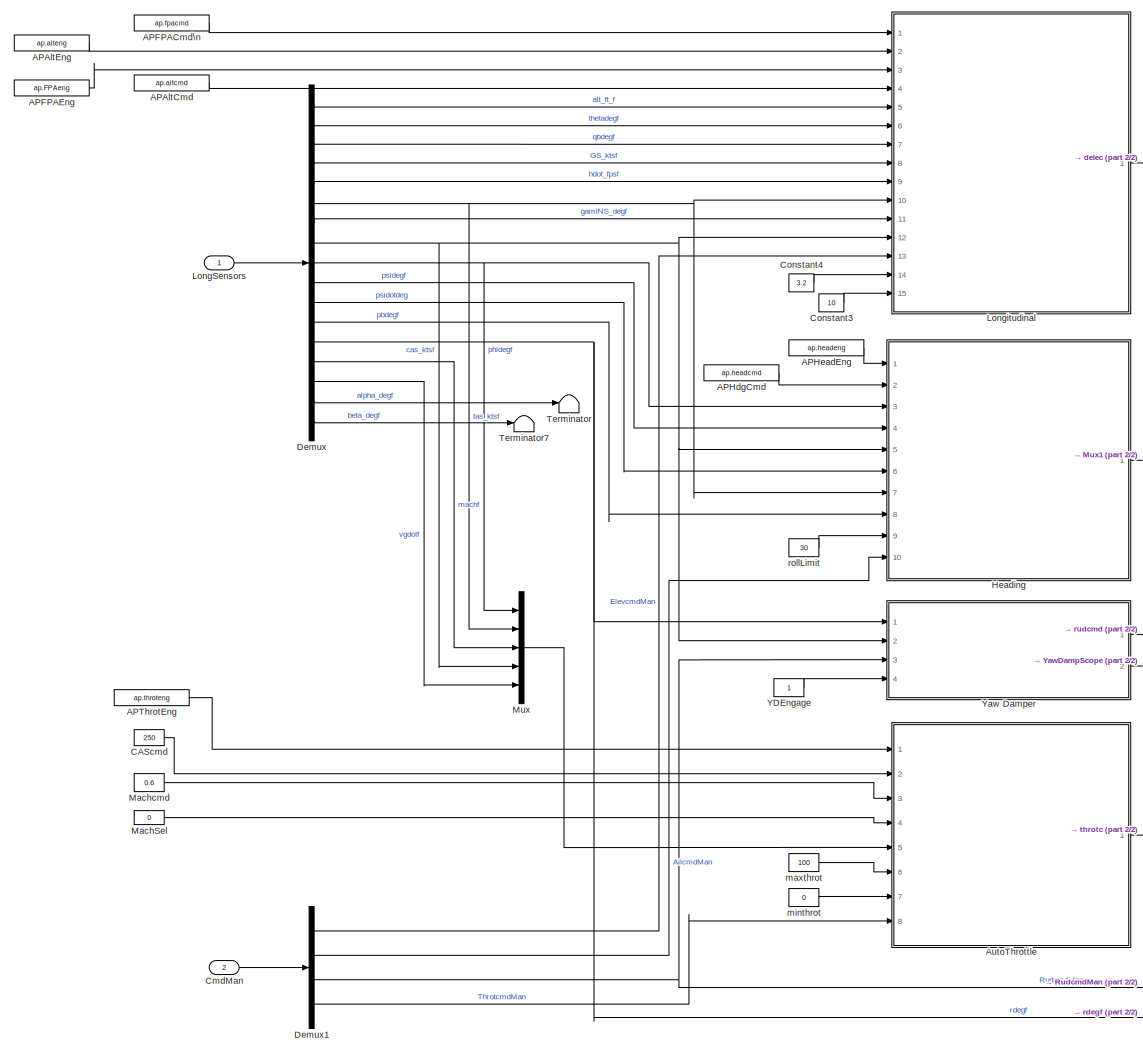
[diagram: root canvas - part 1/2, most of the canvas]
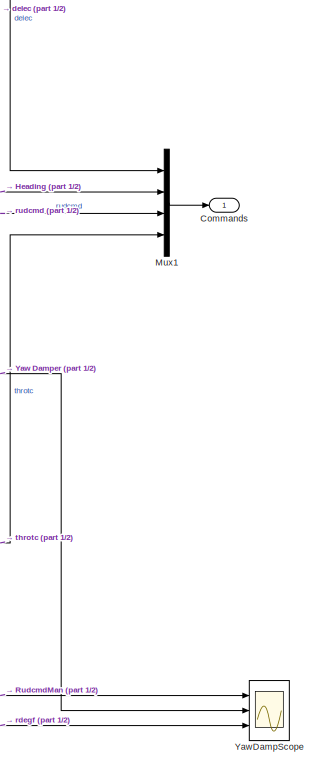
[diagram: root canvas - part 2/2, middle right region]
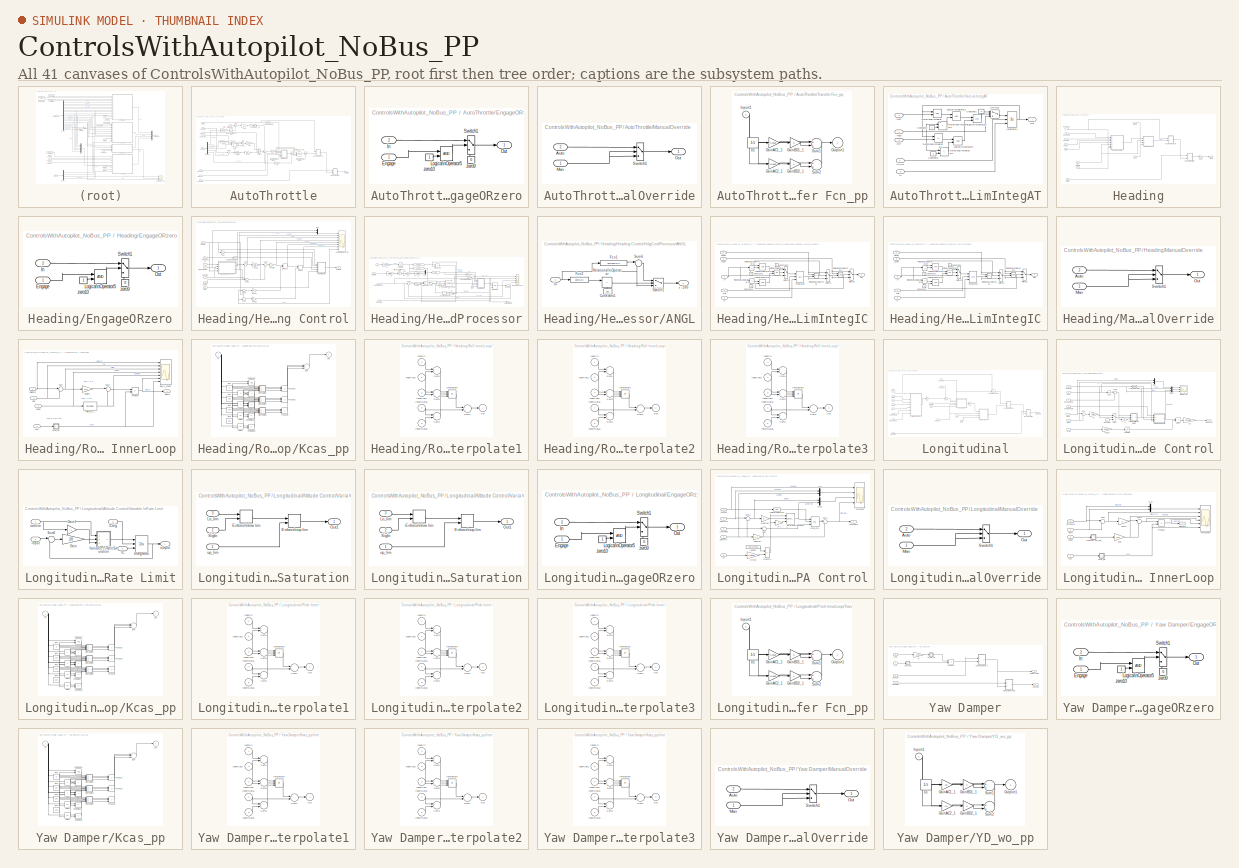
[diagram: thumbnail index - all 41 canvases of the model, root first then tree order]
MODEL ControlsWithAutopilot_NoBus_PP
KIND model
BLOCK [Constant] APAltCmd
  Value = ap.altcmd
BLOCK [Constant] APAltEng
  OutDataTypeMode = boolean
  OutDataTypeStr = boolean
  Value = ap.alteng
BLOCK [Constant] APFPACmd\n
  Value = ap.fpacmd
BLOCK [Constant] APFPAEng
  OutDataTypeMode = boolean
  OutDataTypeStr = boolean
  Value = ap.FPAeng
BLOCK [Constant] APHdgCmd
  Value = ap.headcmd
BLOCK [Constant] APHeadEng
  OutDataTypeMode = boolean
  OutDataTypeStr = boolean
  Value = ap.headeng
BLOCK [Constant] APThrotEng
  OutDataTypeMode = boolean
  OutDataTypeStr = boolean
  Value = ap.throteng
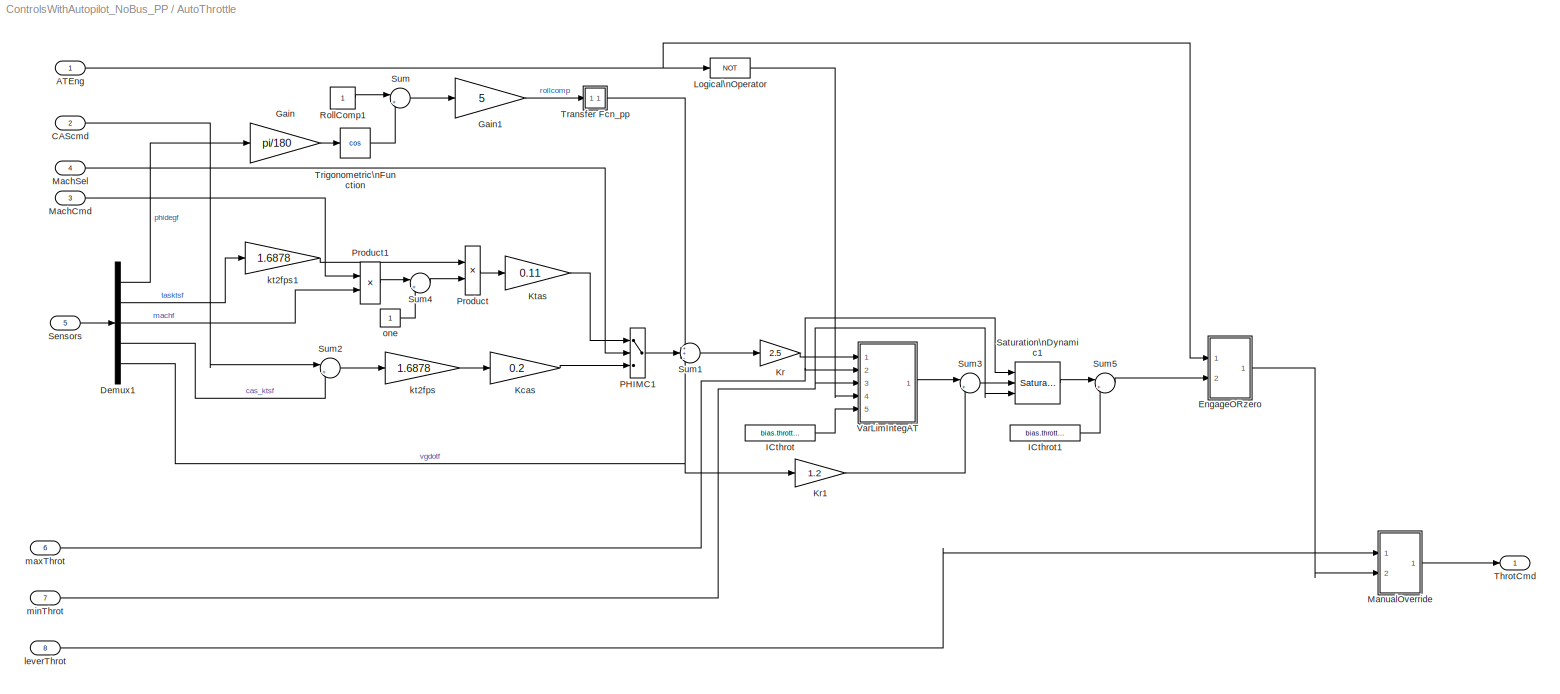
BLOCK [SubSystem] AutoThrottle
  FunctionWithSeparateData = off
  MaskHideContents = off
  MinAlgLoopOccurrences = off
  Opaque = off
  Ports = [8, 1]
  PropExecContextOutsideSubsystem = off
  RTWSystemCode = Auto
  RequestExecContextInheritance = off
BLOCK [Inport] AutoThrottle/ATEng
  IconDisplay = Port number
BLOCK [Inport] AutoThrottle/CAScmd
  IconDisplay = Port number
  Port = 2
BLOCK [Demux] AutoThrottle/Demux1
  DisplayOption = bar
  Outputs = 5
  Ports = [1, 5]
BLOCK [SubSystem] AutoThrottle/EngageORzero
  FunctionWithSeparateData = off
  MaskHideContents = off
  MinAlgLoopOccurrences = off
  Opaque = off
  Ports = [2, 1]
  PropExecContextOutsideSubsystem = off
  RTWSystemCode = Auto
  RequestExecContextInheritance = off
BLOCK [Inport] AutoThrottle/EngageORzero/Engage
  IconDisplay = Port number
BLOCK [Inport] AutoThrottle/EngageORzero/In
  IconDisplay = Port number
  Port = 2
BLOCK [Logic] AutoThrottle/EngageORzero/Logical\nOperator5
  AllPortsSameDT = off
  OutDataTypeMode = boolean
  OutDataTypeStr = boolean
  Ports = [2, 1]
BLOCK [Outport] AutoThrottle/EngageORzero/Out
  IconDisplay = Port number
BLOCK [Switch] AutoThrottle/EngageORzero/Switch1
  InputSameDT = off
  SaturateOnIntegerOverflow = off
  Threshold = 0.5
BLOCK [Constant] AutoThrottle/EngageORzero/zero10
BLOCK [Constant] AutoThrottle/EngageORzero/zero9
  Value = 0
BLOCK [Gain] AutoThrottle/Gain
  Gain = pi/180
  OutDataTypeMode = Inherit via internal rule
  OutDataTypeStr = Inherit: Inherit via internal rule
  ParamDataTypeStr = Inherit: Inherit via internal rule
  ParameterDataTypeMode = Inherit via internal rule
  SaturateOnIntegerOverflow = off
BLOCK [Gain] AutoThrottle/Gain1
  Gain = 5
  OutDataTypeMode = Inherit via internal rule
  OutDataTypeStr = Inherit: Inherit via internal rule
  ParamDataTypeStr = Inherit: Inherit via internal rule
  ParameterDataTypeMode = Inherit via internal rule
  SaturateOnIntegerOverflow = off
BLOCK [Constant] AutoThrottle/ICthrot
  SampleTime = -1
  Value = bias.throttle
BLOCK [Constant] AutoThrottle/ICthrot1
  SampleTime = -1
  Value = bias.throttle
BLOCK [Gain] AutoThrottle/Kcas
  Gain = 0.2
  OutDataTypeMode = Inherit via internal rule
  OutDataTypeStr = Inherit: Inherit via internal rule
  ParamDataTypeStr = Inherit: Inherit via internal rule
  ParameterDataTypeMode = Inherit via internal rule
  SaturateOnIntegerOverflow = off
BLOCK [Gain] AutoThrottle/Kr
  Gain = 2.5
  OutDataTypeMode = Inherit via internal rule
  OutDataTypeStr = Inherit: Inherit via internal rule
  ParamDataTypeStr = Inherit: Inherit via internal rule
  ParameterDataTypeMode = Inherit via internal rule
  SaturateOnIntegerOverflow = off
BLOCK [Gain] AutoThrottle/Kr1
  Gain = 1.2
  OutDataTypeMode = Inherit via internal rule
  OutDataTypeStr = Inherit: Inherit via internal rule
  ParamDataTypeStr = Inherit: Inherit via internal rule
  ParameterDataTypeMode = Inherit via internal rule
  SaturateOnIntegerOverflow = off
BLOCK [Gain] AutoThrottle/Ktas
  Gain = 0.11
  OutDataTypeMode = Inherit via internal rule
  OutDataTypeStr = Inherit: Inherit via internal rule
  ParamDataTypeStr = Inherit: Inherit via internal rule
  ParameterDataTypeMode = Inherit via internal rule
  SaturateOnIntegerOverflow = off
BLOCK [Logic] AutoThrottle/Logical\nOperator
  AllPortsSameDT = off
  Operator = NOT
  OutDataTypeMode = boolean
  OutDataTypeStr = boolean
  Ports = [1, 1]
BLOCK [Inport] AutoThrottle/MachCmd
  IconDisplay = Port number
  Port = 3
BLOCK [Inport] AutoThrottle/MachSel
  IconDisplay = Port number
  Port = 4
BLOCK [SubSystem] AutoThrottle/ManualOverride
  FunctionWithSeparateData = off
  MaskHideContents = off
  MinAlgLoopOccurrences = off
  Opaque = off
  Ports = [2, 1]
  PropExecContextOutsideSubsystem = off
  RTWSystemCode = Auto
  RequestExecContextInheritance = off
BLOCK [Inport] AutoThrottle/ManualOverride/Auto
  IconDisplay = Port number
  Port = 2
BLOCK [Inport] AutoThrottle/ManualOverride/Man
  IconDisplay = Port number
BLOCK [Outport] AutoThrottle/ManualOverride/Out
  IconDisplay = Port number
BLOCK [Switch] AutoThrottle/ManualOverride/Switch1
  Criteria = u2 ~= 0
  InputSameDT = off
  SaturateOnIntegerOverflow = off
  Threshold = 0.5
BLOCK [Switch] AutoThrottle/PHIMC1
  InputSameDT = off
  SampleTime = 0.02
  Threshold = 0.5
BLOCK [Product] AutoThrottle/Product
  InputSameDT = off
  OutDataTypeMode = Inherit via internal rule
  OutDataTypeStr = Inherit: Inherit via internal rule
  Ports = [2, 1]
  SaturateOnIntegerOverflow = off
BLOCK [Product] AutoThrottle/Product1
  InputSameDT = off
  Inputs = */
  OutDataTypeMode = Inherit via internal rule
  OutDataTypeStr = Inherit: Inherit via internal rule
  Ports = [2, 1]
  SaturateOnIntegerOverflow = off
BLOCK [Constant] AutoThrottle/RollComp1
  SampleTime = -1
BLOCK [Reference] AutoThrottle/Saturation\nDynamic1  REF=simulink/Discontinuities/Saturation\nDynamic
  DoSatur = off
  FunctionWithSeparateData = off
  LockScale = off
  OutDataType = sfix(16)
  OutDataTypeStr = Inherit: Same as second input
  OutMax = []
  OutMin = []
  OutScaling = 2^-10
  OutputDataTypeScalingMode = Same as second input
  Ports = [3, 1]
  RTWMemSecDataConstants = Inherit from model
  RTWMemSecDataInternal = Inherit from model
  RTWMemSecDataParameters = Inherit from model
  RTWMemSecFuncExecute = Inherit from model
  RTWMemSecFuncInitTerm = Inherit from model
  RndMeth = Floor
  ShowPortLabels = FromPortIcon
  SourceBlock = simulink/Discontinuities/Saturation\nDynamic
  SourceType = Saturation Dynamic
  SystemSampleTime = -1
BLOCK [Inport] AutoThrottle/Sensors
  IconDisplay = Port number
  Port = 5
BLOCK [Sum] AutoThrottle/Sum
  IconShape = round
  InputSameDT = off
  Inputs = |+-
  OutDataTypeMode = Inherit via internal rule
  OutDataTypeStr = Inherit: Inherit via internal rule
  Ports = [2, 1]
  SaturateOnIntegerOverflow = off
BLOCK [Sum] AutoThrottle/Sum1
  IconShape = round
  InputSameDT = off
  Inputs = ++-
  OutDataTypeMode = Inherit via internal rule
  OutDataTypeStr = Inherit: Inherit via internal rule
  Ports = [3, 1]
  SaturateOnIntegerOverflow = off
BLOCK [Sum] AutoThrottle/Sum2
  IconShape = round
  InputSameDT = off
  Inputs = |+-
  OutDataTypeMode = Inherit via internal rule
  OutDataTypeStr = Inherit: Inherit via internal rule
  Ports = [2, 1]
  SaturateOnIntegerOverflow = off
BLOCK [Sum] AutoThrottle/Sum3
  IconShape = round
  InputSameDT = off
  Inputs = |+-
  OutDataTypeMode = Inherit via internal rule
  OutDataTypeStr = Inherit: Inherit via internal rule
  Ports = [2, 1]
  SaturateOnIntegerOverflow = off
BLOCK [Sum] AutoThrottle/Sum4
  IconShape = round
  InputSameDT = off
  Inputs = |+-
  OutDataTypeMode = Inherit via internal rule
  OutDataTypeStr = Inherit: Inherit via internal rule
  Ports = [2, 1]
  SaturateOnIntegerOverflow = off
BLOCK [Sum] AutoThrottle/Sum5
  IconShape = round
  InputSameDT = off
  Inputs = |+-
  OutDataTypeMode = Inherit via internal rule
  OutDataTypeStr = Inherit: Inherit via internal rule
  Ports = [2, 1]
  SaturateOnIntegerOverflow = off
BLOCK [Outport] AutoThrottle/ThrotCmd
  IconDisplay = Port number
BLOCK [SubSystem] AutoThrottle/Transfer Fcn_pp
  FunctionWithSeparateData = off
  MaskHideContents = off
  MinAlgLoopOccurrences = off
  Opaque = off
  Ports = [1, 1]
  PropExecContextOutsideSubsystem = off
  RTWSystemCode = Auto
  RequestExecContextInheritance = off
  TreatAsAtomicUnit = on
BLOCK [UnitDelay] AutoThrottle/Transfer Fcn_pp/D1
  SampleTime = -1
BLOCK [Gain] AutoThrottle/Transfer Fcn_pp/GainAC1_1
  Gain = -0.0625
BLOCK [Gain] AutoThrottle/Transfer Fcn_pp/GainAC2_1
  Gain = -0.0625
BLOCK [Gain] AutoThrottle/Transfer Fcn_pp/GainBD1_1
BLOCK [Gain] AutoThrottle/Transfer Fcn_pp/GainBD2_1
BLOCK [Inport] AutoThrottle/Transfer Fcn_pp/Inport1
  IconDisplay = Port number
BLOCK [Outport] AutoThrottle/Transfer Fcn_pp/Outport1
  IconDisplay = Port number
BLOCK [Sum] AutoThrottle/Transfer Fcn_pp/Sum1
  Ports = [2, 1]
BLOCK [Sum] AutoThrottle/Transfer Fcn_pp/Sum2
  Ports = [2, 1]
BLOCK [Trigonometry] AutoThrottle/Trigonometric\nFunction
  Operator = cos
  Ports = [1, 1]
BLOCK [SubSystem] AutoThrottle/VarLimIntegAT
  FunctionWithSeparateData = off
  MaskHideContents = off
  MinAlgLoopOccurrences = off
  Opaque = off
  Ports = [5, 1]
  PropExecContextOutsideSubsystem = off
  RTWSystemCode = Auto
  RequestExecContextInheritance = off
BLOCK [Constant] AutoThrottle/VarLimIntegAT/Constant1
  SampleTime = -1
  Value = 0
BLOCK [Constant] AutoThrottle/VarLimIntegAT/Constant2
  SampleTime = -1
  Value = 0
BLOCK [Constant] AutoThrottle/VarLimIntegAT/Constant3
  SampleTime = -1
  Value = 0
BLOCK [Inport] AutoThrottle/VarLimIntegAT/IC
  IconDisplay = Port number
  Port = 5
BLOCK [Inport] AutoThrottle/VarLimIntegAT/ICtrig
  IconDisplay = Port number
  Port = 4
BLOCK [Inport] AutoThrottle/VarLimIntegAT/Input
  IconDisplay = Port number
BLOCK [Integrator] AutoThrottle/VarLimIntegAT/Integrator1
  ExternalReset = level
  InitialConditionSource = external
  Ports = [3, 1]
BLOCK [Logic] AutoThrottle/VarLimIntegAT/Logical\nOperator1
  Operator = OR
  Ports = [2, 1]
BLOCK [Logic] AutoThrottle/VarLimIntegAT/Logical\nOperator2
  Ports = [2, 1]
BLOCK [Logic] AutoThrottle/VarLimIntegAT/Logical\nOperator3
  Ports = [2, 1]
BLOCK [Inport] AutoThrottle/VarLimIntegAT/Max
  IconDisplay = Port number
  Port = 2
BLOCK [Inport] AutoThrottle/VarLimIntegAT/Min
  IconDisplay = Port number
  Port = 3
BLOCK [Outport] AutoThrottle/VarLimIntegAT/Out
  IconDisplay = Port number
BLOCK [RelationalOperator] AutoThrottle/VarLimIntegAT/Relational\nOperator1
  Operator = <=
BLOCK [RelationalOperator] AutoThrottle/VarLimIntegAT/Relational\nOperator2
BLOCK [RelationalOperator] AutoThrottle/VarLimIntegAT/Relational\nOperator3
  Operator = >
BLOCK [RelationalOperator] AutoThrottle/VarLimIntegAT/Relational\nOperator4
  Operator = <
BLOCK [Switch] AutoThrottle/VarLimIntegAT/Switch1
  Threshold = 0.1
BLOCK [Gain] AutoThrottle/kt2fps
  Gain = 1.6878
  OutDataTypeMode = Inherit via internal rule
  OutDataTypeStr = Inherit: Inherit via internal rule
  ParamDataTypeStr = Inherit: Inherit via internal rule
  ParameterDataTypeMode = Inherit via internal rule
  SaturateOnIntegerOverflow = off
BLOCK [Gain] AutoThrottle/kt2fps1
  Gain = 1.6878
  OutDataTypeMode = Inherit via internal rule
  OutDataTypeStr = Inherit: Inherit via internal rule
  ParamDataTypeStr = Inherit: Inherit via internal rule
  ParameterDataTypeMode = Inherit via internal rule
  SaturateOnIntegerOverflow = off
BLOCK [Inport] AutoThrottle/leverThrot
  IconDisplay = Port number
  Port = 8
BLOCK [Inport] AutoThrottle/maxThrot
  IconDisplay = Port number
  Port = 6
BLOCK [Inport] AutoThrottle/minThrot
  IconDisplay = Port number
  Port = 7
BLOCK [Constant] AutoThrottle/one
  SampleTime = -1
BLOCK [Constant] CAScmd
  Value = 250
BLOCK [Inport] CmdMan
  BusObject = SensorsBus
  IconDisplay = Port number
  Port = 2
  PortDimensions = 9
BLOCK [Outport] Commands
  IconDisplay = Port number
BLOCK [Constant] Constant3
  Value = 10
BLOCK [Constant] Constant4
  Value = 3.2
BLOCK [Demux] Demux
  DisplayOption = bar
  Outputs = 17
  Ports = [1, 17]
BLOCK [Demux] Demux1
  DisplayOption = bar
  Ports = [1, 4]
BLOCK [SubSystem] Heading
  FunctionWithSeparateData = off
  MaskHideContents = off
  MinAlgLoopOccurrences = off
  Opaque = off
  Ports = [10, 1]
  PropExecContextOutsideSubsystem = off
  RTWSystemCode = Auto
  RequestExecContextInheritance = off
BLOCK [Outport] Heading/AilCmd
  IconDisplay = Port number
BLOCK [Inport] Heading/AilStick
  IconDisplay = Port number
  Port = 10
BLOCK [Inport] Heading/CAS
  IconDisplay = Port number
  Port = 5
BLOCK [SubSystem] Heading/EngageORzero
  FunctionWithSeparateData = off
  MaskHideContents = off
  MinAlgLoopOccurrences = off
  Opaque = off
  Ports = [2, 1]
  PropExecContextOutsideSubsystem = off
  RTWSystemCode = Auto
  RequestExecContextInheritance = off
BLOCK [Inport] Heading/EngageORzero/Engage
  IconDisplay = Port number
BLOCK [Inport] Heading/EngageORzero/In
  IconDisplay = Port number
  Port = 2
BLOCK [Logic] Heading/EngageORzero/Logical\nOperator5
  AllPortsSameDT = off
  OutDataTypeMode = boolean
  OutDataTypeStr = boolean
  Ports = [2, 1]
BLOCK [Outport] Heading/EngageORzero/Out
  IconDisplay = Port number
BLOCK [Switch] Heading/EngageORzero/Switch1
  InputSameDT = off
  SaturateOnIntegerOverflow = off
  Threshold = 0.5
BLOCK [Constant] Heading/EngageORzero/zero10
BLOCK [Constant] Heading/EngageORzero/zero9
  Value = 0
BLOCK [Gain] Heading/Gain1
  Gain = -1
BLOCK [Inport] Heading/HeadCmd
  IconDisplay = Port number
  Port = 2
BLOCK [Inport] Heading/HeadEng
  IconDisplay = Port number
BLOCK [Inport] Heading/Heading
  IconDisplay = Port number
  Port = 4
BLOCK [SubSystem] Heading/Heading Control
  FunctionWithSeparateData = off
  MaskHideContents = off
  MinAlgLoopOccurrences = off
  Opaque = off
  Ports = [7, 1]
  PropExecContextOutsideSubsystem = off
  RTWSystemCode = Auto
  RequestExecContextInheritance = off
BLOCK [Inport] Heading/Heading Control/HdgCmdMCP
  IconDisplay = Port number
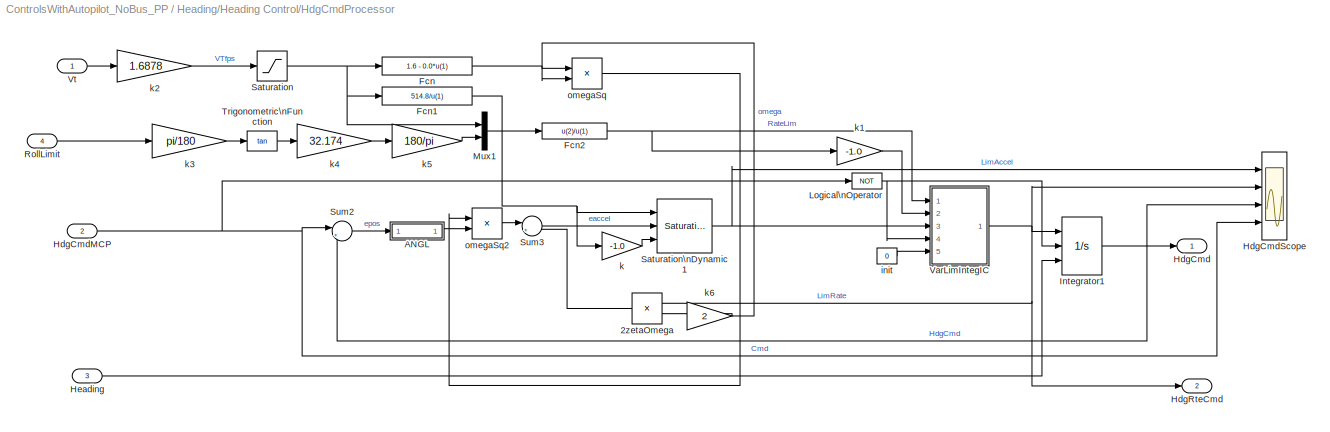
BLOCK [SubSystem] Heading/Heading Control/HdgCmdProcessor
  FunctionWithSeparateData = off
  MaskHideContents = off
  MinAlgLoopOccurrences = off
  Opaque = off
  Ports = [4, 2]
  PropExecContextOutsideSubsystem = off
  RTWSystemCode = Auto
  RequestExecContextInheritance = off
BLOCK [Product] Heading/Heading Control/HdgCmdProcessor/2zetaOmega
  InputSameDT = off
  OutDataTypeMode = Inherit via internal rule
  OutDataTypeStr = Inherit: Inherit via internal rule
  Ports = [2, 1]
  SaturateOnIntegerOverflow = off
BLOCK [SubSystem] Heading/Heading Control/HdgCmdProcessor/ANGL
  FunctionWithSeparateData = off
  MaskHideContents = off
  MinAlgLoopOccurrences = off
  Opaque = off
  Ports = [1, 1]
  PropExecContextOutsideSubsystem = off
  RTWSystemCode = Auto
  RequestExecContextInheritance = off
BLOCK [Outport] Heading/Heading Control/HdgCmdProcessor/ANGL/+ -180
  IconDisplay = Port number
BLOCK [Constant] Heading/Heading Control/HdgCmdProcessor/ANGL/Constant1
  Value = 180
BLOCK [Fcn] Heading/Heading Control/HdgCmdProcessor/ANGL/Fcn1
  Expr = 360*sgn(u(1))
BLOCK [Fcn] Heading/Heading Control/HdgCmdProcessor/ANGL/Fcn2
  Expr = abs(u(1))
BLOCK [RelationalOperator] Heading/Heading Control/HdgCmdProcessor/ANGL/Relational\nOperator
  InputSameDT = off
  Operator = >
BLOCK [Sum] Heading/Heading Control/HdgCmdProcessor/ANGL/Sum6
  IconShape = round
  InputSameDT = off
  Inputs = |-+
  OutDataTypeMode = Inherit via internal rule
  OutDataTypeStr = Inherit: Inherit via internal rule
  Ports = [2, 1]
BLOCK [Switch] Heading/Heading Control/HdgCmdProcessor/ANGL/Switch1
  InputSameDT = off
  Threshold = 0.1
BLOCK [Inport] Heading/Heading Control/HdgCmdProcessor/ANGL/in
  IconDisplay = Port number
BLOCK [Fcn] Heading/Heading Control/HdgCmdProcessor/Fcn
  Expr = 1.6 - 0.0*u(1)
BLOCK [Fcn] Heading/Heading Control/HdgCmdProcessor/Fcn1
  Expr = 514.8/u(1)
BLOCK [Fcn] Heading/Heading Control/HdgCmdProcessor/Fcn2
  Expr = u(2)/u(1)
BLOCK [Outport] Heading/Heading Control/HdgCmdProcessor/HdgCmd
  IconDisplay = Port number
BLOCK [Inport] Heading/Heading Control/HdgCmdProcessor/HdgCmdMCP
  IconDisplay = Port number
  Port = 2
BLOCK [Scope] Heading/Heading Control/HdgCmdProcessor/HdgCmdScope
  DataFormat = StructureWithTime
  Floating = off
  LimitDataPoints = off
  NumInputPorts = 4
  Ports = [4]
  SampleTime = 0
  SaveName = ScopeData6
  YMax = 2~4~40~40
  YMin = -2~-4~-40~-40
BLOCK [Outport] Heading/Heading Control/HdgCmdProcessor/HdgRteCmd
  IconDisplay = Port number
  Port = 2
BLOCK [Inport] Heading/Heading Control/HdgCmdProcessor/Heading
  IconDisplay = Port number
  Port = 3
BLOCK [Integrator] Heading/Heading Control/HdgCmdProcessor/Integrator1
  ExternalReset = level
  InitialConditionSource = external
  Ports = [3, 1]
BLOCK [Logic] Heading/Heading Control/HdgCmdProcessor/Logical\nOperator
  AllPortsSameDT = off
  Operator = NOT
  OutDataTypeMode = boolean
  OutDataTypeStr = boolean
  Ports = [1, 1]
BLOCK [Mux] Heading/Heading Control/HdgCmdProcessor/Mux1
  DisplayOption = bar
  Inputs = 2
  Ports = [2, 1]
BLOCK [Inport] Heading/Heading Control/HdgCmdProcessor/RollLimit
  IconDisplay = Port number
  Port = 4
BLOCK [Saturate] Heading/Heading Control/HdgCmdProcessor/Saturation
  LowerLimit = 0.0001
  UpperLimit = 1000
BLOCK [Reference] Heading/Heading Control/HdgCmdProcessor/Saturation\nDynamic1  REF=simulink/Discontinuities/Saturation\nDynamic
  DoSatur = off
  FunctionWithSeparateData = off
  LockScale = off
  OutDataType = fixdt(1, 16)
  OutDataTypeStr = Inherit: Same as second input
  OutMax = []
  OutMin = []
  OutScaling = 2^-10
  OutputDataTypeScalingMode = Same as second input
  Ports = [3, 1]
  RTWMemSecDataConstants = Inherit from model
  RTWMemSecDataInternal = Inherit from model
  RTWMemSecDataParameters = Inherit from model
  RTWMemSecFuncExecute = Inherit from model
  RTWMemSecFuncInitTerm = Inherit from model
  RndMeth = Floor
  ShowPortLabels = FromPortIcon
  SourceBlock = simulink/Discontinuities/Saturation\nDynamic
  SourceType = Saturation Dynamic
  SystemSampleTime = -1
BLOCK [Sum] Heading/Heading Control/HdgCmdProcessor/Sum2
  IconShape = round
  InputSameDT = off
  Inputs = |+-
  OutDataTypeMode = Inherit via internal rule
  OutDataTypeStr = Inherit: Inherit via internal rule
  Ports = [2, 1]
  SaturateOnIntegerOverflow = off
BLOCK [Sum] Heading/Heading Control/HdgCmdProcessor/Sum3
  IconShape = round
  InputSameDT = off
  Inputs = |+-
  OutDataTypeMode = Inherit via internal rule
  OutDataTypeStr = Inherit: Inherit via internal rule
  Ports = [2, 1]
  SaturateOnIntegerOverflow = off
BLOCK [Trigonometry] Heading/Heading Control/HdgCmdProcessor/Trigonometric\nFunction
  Operator = tan
  Ports = [1, 1]
BLOCK [SubSystem] Heading/Heading Control/HdgCmdProcessor/VarLimIntegIC
  FunctionWithSeparateData = off
  MaskHideContents = off
  MinAlgLoopOccurrences = off
  Opaque = off
  Ports = [5, 1]
  PropExecContextOutsideSubsystem = off
  RTWSystemCode = Auto
  RequestExecContextInheritance = off
BLOCK [Constant] Heading/Heading Control/HdgCmdProcessor/VarLimIntegIC/Constant1
  Value = 0
BLOCK [Constant] Heading/Heading Control/HdgCmdProcessor/VarLimIntegIC/Constant2
  Value = 0
BLOCK [Constant] Heading/Heading Control/HdgCmdProcessor/VarLimIntegIC/Constant3
  Value = 0
BLOCK [Inport] Heading/Heading Control/HdgCmdProcessor/VarLimIntegIC/IC
  IconDisplay = Port number
  Port = 5
BLOCK [Inport] Heading/Heading Control/HdgCmdProcessor/VarLimIntegIC/In
  IconDisplay = Port number
  Port = 3
BLOCK [Integrator] Heading/Heading Control/HdgCmdProcessor/VarLimIntegIC/Integrator
  ExternalReset = level
  InitialConditionSource = external
  Ports = [3, 1]
BLOCK [Inport] Heading/Heading Control/HdgCmdProcessor/VarLimIntegIC/LoLim
  IconDisplay = Port number
  Port = 2
BLOCK [Logic] Heading/Heading Control/HdgCmdProcessor/VarLimIntegIC/Logical\nOperator
  AllPortsSameDT = off
  Ports = [2, 1]
BLOCK [Logic] Heading/Heading Control/HdgCmdProcessor/VarLimIntegIC/Logical\nOperator1
  AllPortsSameDT = off
  Ports = [2, 1]
BLOCK [Logic] Heading/Heading Control/HdgCmdProcessor/VarLimIntegIC/Logical\nOperator2
  AllPortsSameDT = off
  Operator = OR
  Ports = [2, 1]
BLOCK [Outport] Heading/Heading Control/HdgCmdProcessor/VarLimIntegIC/Out
  IconDisplay = Port number
BLOCK [RelationalOperator] Heading/Heading Control/HdgCmdProcessor/VarLimIntegIC/Relational\nOperator
  InputSameDT = off
  Operator = <=
BLOCK [RelationalOperator] Heading/Heading Control/HdgCmdProcessor/VarLimIntegIC/Relational\nOperator1
  InputSameDT = off
BLOCK [RelationalOperator] Heading/Heading Control/HdgCmdProcessor/VarLimIntegIC/Relational\nOperator2
  InputSameDT = off
  Operator = >
BLOCK [RelationalOperator] Heading/Heading Control/HdgCmdProcessor/VarLimIntegIC/Relational\nOperator3
  InputSameDT = off
  Operator = <
BLOCK [Switch] Heading/Heading Control/HdgCmdProcessor/VarLimIntegIC/Switch1
  Threshold = 0.5
BLOCK [Switch] Heading/Heading Control/HdgCmdProcessor/VarLimIntegIC/Switch2
  Threshold = 0.5
BLOCK [Switch] Heading/Heading Control/HdgCmdProcessor/VarLimIntegIC/Switch3
  Threshold = 0.5
BLOCK [Inport] Heading/Heading Control/HdgCmdProcessor/VarLimIntegIC/Trig
  IconDisplay = Port number
  Port = 4
BLOCK [Inport] Heading/Heading Control/HdgCmdProcessor/VarLimIntegIC/UpLim
  IconDisplay = Port number
BLOCK [Inport] Heading/Heading Control/HdgCmdProcessor/Vt
  IconDisplay = Port number
BLOCK [Constant] Heading/Heading Control/HdgCmdProcessor/init
  Value = 0
BLOCK [Gain] Heading/Heading Control/HdgCmdProcessor/k
  Gain = -1.0
  OutDataTypeMode = Inherit via internal rule
  OutDataTypeStr = Inherit: Inherit via internal rule
  ParamDataTypeStr = Inherit: Inherit via internal rule
  ParameterDataTypeMode = Inherit via internal rule
  SaturateOnIntegerOverflow = off
BLOCK [Gain] Heading/Heading Control/HdgCmdProcessor/k1
  Gain = -1.0
  OutDataTypeMode = Inherit via internal rule
  OutDataTypeStr = Inherit: Inherit via internal rule
  ParamDataTypeStr = Inherit: Inherit via internal rule
  ParameterDataTypeMode = Inherit via internal rule
  SaturateOnIntegerOverflow = off
BLOCK [Gain] Heading/Heading Control/HdgCmdProcessor/k2
  Gain = 1.6878
  OutDataTypeMode = Inherit via internal rule
  OutDataTypeStr = Inherit: Inherit via internal rule
  ParamDataTypeStr = Inherit: Inherit via internal rule
  ParameterDataTypeMode = Inherit via internal rule
  SaturateOnIntegerOverflow = off
BLOCK [Gain] Heading/Heading Control/HdgCmdProcessor/k3
  Gain = pi/180
  OutDataTypeMode = Inherit via internal rule
  OutDataTypeStr = Inherit: Inherit via internal rule
  ParamDataTypeStr = Inherit: Inherit via internal rule
  ParameterDataTypeMode = Inherit via internal rule
  SaturateOnIntegerOverflow = off
BLOCK [Gain] Heading/Heading Control/HdgCmdProcessor/k4
  Gain = 32.174
  OutDataTypeMode = Inherit via internal rule
  OutDataTypeStr = Inherit: Inherit via internal rule
  ParamDataTypeStr = Inherit: Inherit via internal rule
  ParameterDataTypeMode = Inherit via internal rule
  SaturateOnIntegerOverflow = off
BLOCK [Gain] Heading/Heading Control/HdgCmdProcessor/k5
  Gain = 180/pi
  OutDataTypeMode = Inherit via internal rule
  OutDataTypeStr = Inherit: Inherit via internal rule
  ParamDataTypeStr = Inherit: Inherit via internal rule
  ParameterDataTypeMode = Inherit via internal rule
  SaturateOnIntegerOverflow = off
BLOCK [Gain] Heading/Heading Control/HdgCmdProcessor/k6
  Gain = 2
  OutDataTypeMode = Inherit via internal rule
  OutDataTypeStr = Inherit: Inherit via internal rule
  ParamDataTypeStr = Inherit: Inherit via internal rule
  ParameterDataTypeMode = Inherit via internal rule
  SaturateOnIntegerOverflow = off
BLOCK [Product] Heading/Heading Control/HdgCmdProcessor/omegaSq
  InputSameDT = off
  OutDataTypeMode = Inherit via internal rule
  OutDataTypeStr = Inherit: Inherit via internal rule
  Ports = [2, 1]
  SaturateOnIntegerOverflow = off
BLOCK [Product] Heading/Heading Control/HdgCmdProcessor/omegaSq2
  InputSameDT = off
  OutDataTypeMode = Inherit via internal rule
  OutDataTypeStr = Inherit: Inherit via internal rule
  Ports = [2, 1]
  SaturateOnIntegerOverflow = off
BLOCK [Scope] Heading/Heading Control/HdgRollCmdScope
  DataFormat = StructureWithTime
  Floating = off
  LimitDataPoints = off
  NumInputPorts = 8
  Ports = [8]
  SampleTime = 0
  SaveName = ScopeData7
  YMax = 30~30~10~10~4~10~1~5
  YMin = -30~-30~-10~-10~-4~-10~0~-5
BLOCK [Inport] Heading/Heading Control/HeadEng
  IconDisplay = Port number
  Port = 6
BLOCK [Inport] Heading/Heading Control/Heading
  IconDisplay = Port number
  Port = 2
BLOCK [Gain] Heading/Heading Control/Khdg
  Gain = 0.05
  OutDataTypeMode = Inherit via internal rule
  OutDataTypeStr = Inherit: Inherit via internal rule
  ParamDataTypeStr = Inherit: Inherit via internal rule
  ParameterDataTypeMode = Inherit via internal rule
  SaturateOnIntegerOverflow = off
BLOCK [Gain] Heading/Heading Control/Khdg1
  OutDataTypeMode = Inherit via internal rule
  OutDataTypeStr = Inherit: Inherit via internal rule
  ParamDataTypeStr = Inherit: Inherit via internal rule
  ParameterDataTypeMode = Inherit via internal rule
  SaturateOnIntegerOverflow = off
BLOCK [Gain] Heading/Heading Control/Khdg2
  OutDataTypeMode = Inherit via internal rule
  OutDataTypeStr = Inherit: Inherit via internal rule
  ParamDataTypeStr = Inherit: Inherit via internal rule
  ParameterDataTypeMode = Inherit via internal rule
  SaturateOnIntegerOverflow = off
BLOCK [Gain] Heading/Heading Control/Khdgrte
  Gain = 3
  OutDataTypeMode = Inherit via internal rule
  OutDataTypeStr = Inherit: Inherit via internal rule
  ParamDataTypeStr = Inherit: Inherit via internal rule
  ParameterDataTypeMode = Inherit via internal rule
  SaturateOnIntegerOverflow = off
BLOCK [Logic] Heading/Heading Control/Logical\nOperator
  AllPortsSameDT = off
  Operator = NOT
  OutDataTypeMode = boolean
  OutDataTypeStr = boolean
  Ports = [1, 1]
BLOCK [MinMax] Heading/Heading Control/MinMax
  Function = min
  InputSameDT = off
  Inputs = 2
  Ports = [2, 1]
  SaturateOnIntegerOverflow = off
BLOCK [MinMax] Heading/Heading Control/MinMax1
  Function = max
  InputSameDT = off
  Inputs = 2
  Ports = [2, 1]
  SaturateOnIntegerOverflow = off
BLOCK [Mux] Heading/Heading Control/Mux
  DisplayOption = bar
  Inputs = 2
  Ports = [2, 1]
BLOCK [Inport] Heading/Heading Control/Roll
  IconDisplay = Port number
  Port = 5
BLOCK [Outport] Heading/Heading Control/RollCmd
  IconDisplay = Port number
BLOCK [Inport] Heading/Heading Control/RollLimit
  IconDisplay = Port number
  Port = 7
BLOCK [Sum] Heading/Heading Control/Sum
  IconShape = round
  InputSameDT = off
  Inputs = |+-
  OutDataTypeMode = Inherit via internal rule
  OutDataTypeStr = Inherit: Inherit via internal rule
  Ports = [2, 1]
  SaturateOnIntegerOverflow = off
BLOCK [Sum] Heading/Heading Control/Sum1
  IconShape = round
  InputSameDT = off
  Inputs = |++
  OutDataTypeMode = Inherit via internal rule
  OutDataTypeStr = Inherit: Inherit via internal rule
  Ports = [2, 1]
  SaturateOnIntegerOverflow = off
BLOCK [Sum] Heading/Heading Control/Sum2
  IconShape = round
  InputSameDT = off
  Inputs = |+-
  OutDataTypeMode = Inherit via internal rule
  OutDataTypeStr = Inherit: Inherit via internal rule
  Ports = [2, 1]
  SaturateOnIntegerOverflow = off
BLOCK [Sum] Heading/Heading Control/Sum3
  IconShape = round
  InputSameDT = off
  Inputs = |--
  OutDataTypeMode = Inherit via internal rule
  OutDataTypeStr = Inherit: Inherit via internal rule
  Ports = [2, 1]
  SaturateOnIntegerOverflow = off
BLOCK [Sum] Heading/Heading Control/Sum4
  IconShape = round
  InputSameDT = off
  Inputs = +-|
  OutDataTypeMode = Inherit via internal rule
  OutDataTypeStr = Inherit: Inherit via internal rule
  Ports = [2, 1]
  SaturateOnIntegerOverflow = off
BLOCK [SubSystem] Heading/Heading Control/VarLimIntegIC
  FunctionWithSeparateData = off
  MaskHideContents = off
  MinAlgLoopOccurrences = off
  Opaque = off
  Ports = [5, 1]
  PropExecContextOutsideSubsystem = off
  RTWSystemCode = Auto
  RequestExecContextInheritance = off
BLOCK [Constant] Heading/Heading Control/VarLimIntegIC/Constant1
  Value = 0
BLOCK [Constant] Heading/Heading Control/VarLimIntegIC/Constant2
  Value = 0
BLOCK [Constant] Heading/Heading Control/VarLimIntegIC/Constant3
  Value = 0
BLOCK [Inport] Heading/Heading Control/VarLimIntegIC/IC
  IconDisplay = Port number
  Port = 5
BLOCK [Inport] Heading/Heading Control/VarLimIntegIC/In
  IconDisplay = Port number
  Port = 3
BLOCK [Integrator] Heading/Heading Control/VarLimIntegIC/Integrator
  ExternalReset = level
  InitialConditionSource = external
  Ports = [3, 1]
BLOCK [Inport] Heading/Heading Control/VarLimIntegIC/LoLim
  IconDisplay = Port number
  Port = 2
BLOCK [Logic] Heading/Heading Control/VarLimIntegIC/Logical\nOperator
  AllPortsSameDT = off
  Ports = [2, 1]
BLOCK [Logic] Heading/Heading Control/VarLimIntegIC/Logical\nOperator1
  AllPortsSameDT = off
  Ports = [2, 1]
BLOCK [Logic] Heading/Heading Control/VarLimIntegIC/Logical\nOperator2
  AllPortsSameDT = off
  Operator = OR
  Ports = [2, 1]
BLOCK [Outport] Heading/Heading Control/VarLimIntegIC/Out
  IconDisplay = Port number
BLOCK [RelationalOperator] Heading/Heading Control/VarLimIntegIC/Relational\nOperator
  InputSameDT = off
  Operator = <=
BLOCK [RelationalOperator] Heading/Heading Control/VarLimIntegIC/Relational\nOperator1
  InputSameDT = off
BLOCK [RelationalOperator] Heading/Heading Control/VarLimIntegIC/Relational\nOperator2
  InputSameDT = off
  Operator = >
BLOCK [RelationalOperator] Heading/Heading Control/VarLimIntegIC/Relational\nOperator3
  InputSameDT = off
  Operator = <
BLOCK [Switch] Heading/Heading Control/VarLimIntegIC/Switch1
  Threshold = 0.5
BLOCK [Switch] Heading/Heading Control/VarLimIntegIC/Switch2
  Threshold = 0.5
BLOCK [Switch] Heading/Heading Control/VarLimIntegIC/Switch3
  Threshold = 0.5
BLOCK [Inport] Heading/Heading Control/VarLimIntegIC/Trig
  IconDisplay = Port number
  Port = 4
BLOCK [Inport] Heading/Heading Control/VarLimIntegIC/UpLim
  IconDisplay = Port number
BLOCK [Inport] Heading/Heading Control/Vt
  IconDisplay = Port number
  Port = 4
BLOCK [Inport] Heading/Heading Control/psidot
  IconDisplay = Port number
  Port = 3
BLOCK [Gain] Heading/Heading Control/sgn
  Gain = -1
  OutDataTypeMode = Inherit via internal rule
  OutDataTypeStr = Inherit: Inherit via internal rule
  ParamDataTypeStr = Inherit: Inherit via internal rule
  ParameterDataTypeMode = Inherit via internal rule
  SaturateOnIntegerOverflow = off
BLOCK [SubSystem] Heading/ManualOverride
  FunctionWithSeparateData = off
  MaskHideContents = off
  MinAlgLoopOccurrences = off
  Opaque = off
  Ports = [2, 1]
  PropExecContextOutsideSubsystem = off
  RTWSystemCode = Auto
  RequestExecContextInheritance = off
BLOCK [Inport] Heading/ManualOverride/Auto
  IconDisplay = Port number
  Port = 2
BLOCK [Inport] Heading/ManualOverride/Man
  IconDisplay = Port number
BLOCK [Outport] Heading/ManualOverride/Out
  IconDisplay = Port number
BLOCK [Switch] Heading/ManualOverride/Switch1
  Criteria = u2 ~= 0
  InputSameDT = off
  SaturateOnIntegerOverflow = off
  Threshold = 0.5
BLOCK [Inport] Heading/Roll
  IconDisplay = Port number
  Port = 3
BLOCK [SubSystem] Heading/Roll InnerLoop
  FunctionWithSeparateData = off
  MaskHideContents = off
  MinAlgLoopOccurrences = off
  Opaque = off
  Ports = [4, 1]
  PropExecContextOutsideSubsystem = off
  RTWSystemCode = Auto
  RequestExecContextInheritance = off
BLOCK [Outport] Heading/Roll InnerLoop/AilCmd
  IconDisplay = Port number
BLOCK [Inport] Heading/Roll InnerLoop/CAS
  IconDisplay = Port number
  Port = 4
BLOCK [SubSystem] Heading/Roll InnerLoop/Kcas_pp
  FunctionWithSeparateData = off
  MaskHideContents = off
  MinAlgLoopOccurrences = off
  Opaque = off
  Ports = [1, 1]
  PropExecContextOutsideSubsystem = off
  RTWSystemCode = Auto
  RequestExecContextInheritance = off
  TreatAsAtomicUnit = on
BLOCK [RelationalOperator] Heading/Roll InnerLoop/Kcas_pp/CompInfEq2
  Operator = <=
BLOCK [RelationalOperator] Heading/Roll InnerLoop/Kcas_pp/CompInfEq3
  Operator = <=
BLOCK [RelationalOperator] Heading/Roll InnerLoop/Kcas_pp/CompInfEq4
  Operator = <=
BLOCK [RelationalOperator] Heading/Roll InnerLoop/Kcas_pp/CompSup1
BLOCK [RelationalOperator] Heading/Roll InnerLoop/Kcas_pp/CompSup2
  Operator = >
BLOCK [RelationalOperator] Heading/Roll InnerLoop/Kcas_pp/CompSup3
  Operator = >
BLOCK [Constant] Heading/Roll InnerLoop/Kcas_pp/Data1
BLOCK [Constant] Heading/Roll InnerLoop/Kcas_pp/Data2
BLOCK [Constant] Heading/Roll InnerLoop/Kcas_pp/Data3
  Value = 0.3
BLOCK [Constant] Heading/Roll InnerLoop/Kcas_pp/Data4
  Value = 0.3
BLOCK [Constant] Heading/Roll InnerLoop/Kcas_pp/Idx1
  Value = 0
BLOCK [Constant] Heading/Roll InnerLoop/Kcas_pp/Idx2
  Value = 120
BLOCK [Constant] Heading/Roll InnerLoop/Kcas_pp/Idx3
  Value = 350
BLOCK [Constant] Heading/Roll InnerLoop/Kcas_pp/Idx4
  Value = 500
BLOCK [Inport] Heading/Roll InnerLoop/Kcas_pp/In
  IconDisplay = Port number
BLOCK [SubSystem] Heading/Roll InnerLoop/Kcas_pp/Interpolate1
  FunctionWithSeparateData = off
  MaskHideContents = off
  MinAlgLoopOccurrences = off
  Opaque = off
  Ports = [5, 1]
  PropExecContextOutsideSubsystem = off
  RTWSystemCode = Auto
  RequestExecContextInheritance = off
BLOCK [Inport] Heading/Roll InnerLoop/Kcas_pp/Interpolate1/InportData1
  IconDisplay = Port number
  Port = 4
BLOCK [Inport] Heading/Roll InnerLoop/Kcas_pp/Interpolate1/InportData2
  IconDisplay = Port number
  Port = 5
BLOCK [Inport] Heading/Roll InnerLoop/Kcas_pp/Interpolate1/InportIdx1
  IconDisplay = Port number
  Port = 2
BLOCK [Inport] Heading/Roll InnerLoop/Kcas_pp/Interpolate1/InportIdx2
  IconDisplay = Port number
  Port = 3
BLOCK [Inport] Heading/Roll InnerLoop/Kcas_pp/Interpolate1/InportIn
  IconDisplay = Port number
BLOCK [Product] Heading/Roll InnerLoop/Kcas_pp/Interpolate1/Interpolate
  Inputs = */*
  Ports = [3, 1]
BLOCK [Outport] Heading/Roll InnerLoop/Kcas_pp/Interpolate1/Out
  IconDisplay = Port number
BLOCK [Sum] Heading/Roll InnerLoop/Kcas_pp/Interpolate1/Sum1
  Inputs = +-
  Ports = [2, 1]
BLOCK [Sum] Heading/Roll InnerLoop/Kcas_pp/Interpolate1/Sum2
  Inputs = -+
  Ports = [2, 1]
BLOCK [Sum] Heading/Roll InnerLoop/Kcas_pp/Interpolate1/Sum3
  Inputs = -+
  Ports = [2, 1]
BLOCK [Sum] Heading/Roll InnerLoop/Kcas_pp/Interpolate1/Sum4
  Ports = [2, 1]
BLOCK [SubSystem] Heading/Roll InnerLoop/Kcas_pp/Interpolate2
  FunctionWithSeparateData = off
  MaskHideContents = off
  MinAlgLoopOccurrences = off
  Opaque = off
  Ports = [5, 1]
  PropExecContextOutsideSubsystem = off
  RTWSystemCode = Auto
  RequestExecContextInheritance = off
BLOCK [Inport] Heading/Roll InnerLoop/Kcas_pp/Interpolate2/InportData1
  IconDisplay = Port number
  Port = 4
BLOCK [Inport] Heading/Roll InnerLoop/Kcas_pp/Interpolate2/InportData2
  IconDisplay = Port number
  Port = 5
BLOCK [Inport] Heading/Roll InnerLoop/Kcas_pp/Interpolate2/InportIdx1
  IconDisplay = Port number
  Port = 2
BLOCK [Inport] Heading/Roll InnerLoop/Kcas_pp/Interpolate2/InportIdx2
  IconDisplay = Port number
  Port = 3
BLOCK [Inport] Heading/Roll InnerLoop/Kcas_pp/Interpolate2/InportIn
  IconDisplay = Port number
BLOCK [Product] Heading/Roll InnerLoop/Kcas_pp/Interpolate2/Interpolate
  Inputs = */*
  Ports = [3, 1]
BLOCK [Outport] Heading/Roll InnerLoop/Kcas_pp/Interpolate2/Out
  IconDisplay = Port number
BLOCK [Sum] Heading/Roll InnerLoop/Kcas_pp/Interpolate2/Sum1
  Inputs = +-
  Ports = [2, 1]
BLOCK [Sum] Heading/Roll InnerLoop/Kcas_pp/Interpolate2/Sum2
  Inputs = -+
  Ports = [2, 1]
BLOCK [Sum] Heading/Roll InnerLoop/Kcas_pp/Interpolate2/Sum3
  Inputs = -+
  Ports = [2, 1]
BLOCK [Sum] Heading/Roll InnerLoop/Kcas_pp/Interpolate2/Sum4
  Ports = [2, 1]
BLOCK [SubSystem] Heading/Roll InnerLoop/Kcas_pp/Interpolate3
  FunctionWithSeparateData = off
  MaskHideContents = off
  MinAlgLoopOccurrences = off
  Opaque = off
  Ports = [5, 1]
  PropExecContextOutsideSubsystem = off
  RTWSystemCode = Auto
  RequestExecContextInheritance = off
BLOCK [Inport] Heading/Roll InnerLoop/Kcas_pp/Interpolate3/InportData1
  IconDisplay = Port number
  Port = 4
BLOCK [Inport] Heading/Roll InnerLoop/Kcas_pp/Interpolate3/InportData2
  IconDisplay = Port number
  Port = 5
BLOCK [Inport] Heading/Roll InnerLoop/Kcas_pp/Interpolate3/InportIdx1
  IconDisplay = Port number
  Port = 2
BLOCK [Inport] Heading/Roll InnerLoop/Kcas_pp/Interpolate3/InportIdx2
  IconDisplay = Port number
  Port = 3
BLOCK [Inport] Heading/Roll InnerLoop/Kcas_pp/Interpolate3/InportIn
  IconDisplay = Port number
BLOCK [Product] Heading/Roll InnerLoop/Kcas_pp/Interpolate3/Interpolate
  Inputs = */*
  Ports = [3, 1]
BLOCK [Outport] Heading/Roll InnerLoop/Kcas_pp/Interpolate3/Out
  IconDisplay = Port number
BLOCK [Sum] Heading/Roll InnerLoop/Kcas_pp/Interpolate3/Sum1
  Inputs = +-
  Ports = [2, 1]
BLOCK [Sum] Heading/Roll InnerLoop/Kcas_pp/Interpolate3/Sum2
  Inputs = -+
  Ports = [2, 1]
BLOCK [Sum] Heading/Roll InnerLoop/Kcas_pp/Interpolate3/Sum3
  Inputs = -+
  Ports = [2, 1]
BLOCK [Sum] Heading/Roll InnerLoop/Kcas_pp/Interpolate3/Sum4
  Ports = [2, 1]
BLOCK [Outport] Heading/Roll InnerLoop/Kcas_pp/Out
  IconDisplay = Port number
BLOCK [Product] Heading/Roll InnerLoop/Kcas_pp/Product1
  InputSameDT = off
  Inputs = ***
  Ports = [3, 1]
BLOCK [Product] Heading/Roll InnerLoop/Kcas_pp/Product2
  InputSameDT = off
  Inputs = ***
  Ports = [3, 1]
BLOCK [Product] Heading/Roll InnerLoop/Kcas_pp/Product3
  InputSameDT = off
  Inputs = ***
  Ports = [3, 1]
BLOCK [Sum] Heading/Roll InnerLoop/Kcas_pp/Sum
  Inputs = +++
  Ports = [3, 1]
BLOCK [Gain] Heading/Roll InnerLoop/Kphierr
  Gain = 0.5
  OutDataTypeMode = Inherit via internal rule
  OutDataTypeStr = Inherit: Inherit via internal rule
  ParamDataTypeStr = Inherit: Inherit via internal rule
  ParameterDataTypeMode = Inherit via internal rule
  SaturateOnIntegerOverflow = off
BLOCK [Product] Heading/Roll InnerLoop/Product
  InputSameDT = off
  OutDataTypeMode = Inherit via internal rule
  OutDataTypeStr = Inherit: Inherit via internal rule
  Ports = [2, 1]
  SaturateOnIntegerOverflow = off
BLOCK [Inport] Heading/Roll InnerLoop/Roll
  IconDisplay = Port number
  Port = 2
BLOCK [Inport] Heading/Roll InnerLoop/RollCmd
  IconDisplay = Port number
BLOCK [Scope] Heading/Roll InnerLoop/Roll_IL_scope
  DataFormat = StructureWithTime
  Floating = off
  LimitDataPoints = off
  NumInputPorts = 7
  Ports = [7]
  SampleTime = 0
  SaveName = ScopeData5
  YMax = 30~30~10~10~4~10~1
  YMin = -30~-30~-10~-10~-4~-10~0
BLOCK [Sum] Heading/Roll InnerLoop/Sum
  IconShape = round
  InputSameDT = off
  Inputs = |+-
  OutDataTypeMode = Inherit via internal rule
  OutDataTypeStr = Inherit: Inherit via internal rule
  Ports = [2, 1]
  SaturateOnIntegerOverflow = off
BLOCK [Sum] Heading/Roll InnerLoop/Sum1
  IconShape = round
  InputSameDT = off
  Inputs = |+-
  OutDataTypeMode = Inherit via internal rule
  OutDataTypeStr = Inherit: Inherit via internal rule
  Ports = [2, 1]
  SaturateOnIntegerOverflow = off
BLOCK [Inport] Heading/Roll InnerLoop/pdeg
  IconDisplay = Port number
  Port = 3
BLOCK [ZeroPole] Heading/Roll InnerLoop/rollrate_IL
  Gain = 0.00645
  Poles = -0.5
  Zeros = 0
BLOCK [Inport] Heading/RollLimit
  IconDisplay = Port number
  Port = 9
BLOCK [Inport] Heading/Vt
  IconDisplay = Port number
  Port = 7
BLOCK [Inport] Heading/pDeg
  IconDisplay = Port number
  Port = 8
BLOCK [Inport] Heading/psidot
  IconDisplay = Port number
  Port = 6
BLOCK [Inport] LongSensors
  BusObject = SensorsBus
  IconDisplay = Port number
  PortDimensions = 17
BLOCK [SubSystem] Longitudinal
  FunctionWithSeparateData = off
  MaskHideContents = off
  MinAlgLoopOccurrences = off
  Opaque = off
  Ports = [15, 1]
  PropExecContextOutsideSubsystem = off
  RTWSystemCode = Auto
  RequestExecContextInheritance = off
BLOCK [Inport] Longitudinal/Alt
  IconDisplay = Port number
  Port = 5
BLOCK [Inport] Longitudinal/AltCmd
  IconDisplay = Port number
  Port = 4
BLOCK [SubSystem] Longitudinal/Altitude Control
  FunctionWithSeparateData = off
  MaskHideContents = off
  MinAlgLoopOccurrences = off
  Opaque = off
  Ports = [7, 1]
  PropExecContextOutsideSubsystem = off
  RTWSystemCode = Auto
  RequestExecContextInheritance = off
BLOCK [Abs] Longitudinal/Altitude Control/Abs
BLOCK [Inport] Longitudinal/Altitude Control/AltCmd
  IconDisplay = Port number
  Port = 2
BLOCK [Scope] Longitudinal/Altitude Control/AltCtnlScope
  DataFormat = StructureWithTime
  Floating = off
  LimitDataPoints = off
  NumInputPorts = 3
  Ports = [3]
  SampleTime = 0
  SaveName = ScopeData3
  TimeRange = 30
  YMax = 10200~15~1
  YMin = 10000~-5~0
BLOCK [Inport] Longitudinal/Altitude Control/Altitude
  IconDisplay = Port number
  Port = 3
BLOCK [Constant] Longitudinal/Altitude Control/Constant1
  Value = 0
BLOCK [Product] Longitudinal/Altitude Control/Divide
  InputSameDT = off
  Inputs = */
  OutDataTypeMode = Inherit via internal rule
  OutDataTypeStr = Inherit: Inherit via internal rule
  Ports = [2, 1]
  RndMeth = Floor
  SaturateOnIntegerOverflow = off
BLOCK [Gain] Longitudinal/Altitude Control/Kh
  Gain = 0.08
  OutDataTypeMode = Inherit via internal rule
  OutDataTypeStr = Inherit: Inherit via internal rule
  ParamDataTypeStr = Inherit: Inherit via internal rule
  ParameterDataTypeMode = Inherit via internal rule
  SaturateOnIntegerOverflow = off
BLOCK [Logic] Longitudinal/Altitude Control/Logical\nOperator
  Operator = NOT
  Ports = [1, 1]
BLOCK [Mux] Longitudinal/Altitude Control/Mux
  DisplayOption = bar
  Inputs = 2
  Ports = [2, 1]
BLOCK [Mux] Longitudinal/Altitude Control/Mux1
  DisplayOption = bar
  Inputs = 2
  Ports = [2, 1]
BLOCK [Saturate] Longitudinal/Altitude Control/Saturation
  LowerLimit = 0.0001
  UpperLimit = 1000
BLOCK [Sum] Longitudinal/Altitude Control/Sum
  IconShape = round
  InputSameDT = off
  Inputs = |+-
  OutDataTypeMode = Inherit via internal rule
  OutDataTypeStr = Inherit: Inherit via internal rule
  Ports = [2, 1]
  SaturateOnIntegerOverflow = off
BLOCK [Sum] Longitudinal/Altitude Control/Sum3
  IconShape = round
  Inputs = |++
  Ports = [2, 1]
BLOCK [Switch] Longitudinal/Altitude Control/Switch
  InputSameDT = off
  SaturateOnIntegerOverflow = off
BLOCK [SubSystem] Longitudinal/Altitude Control/Variable Limit\nSaturation
  FunctionWithSeparateData = off
  MaskHideContents = off
  MinAlgLoopOccurrences = off
  Opaque = off
  Ports = [3, 1]
  PropExecContextOutsideSubsystem = off
  RTWSystemCode = Auto
  RequestExecContextInheritance = off
BLOCK [MinMax] Longitudinal/Altitude Control/Variable Limit\nSaturation/Enforce\nlow lim
  Function = max
  InputSameDT = off
  Inputs = 2
  Ports = [2, 1]
  SaturateOnIntegerOverflow = off
BLOCK [MinMax] Longitudinal/Altitude Control/Variable Limit\nSaturation/Enforce\nup lim
  Function = min
  InputSameDT = off
  Inputs = 2
  Ports = [2, 1]
  SaturateOnIntegerOverflow = off
BLOCK [Inport] Longitudinal/Altitude Control/Variable Limit\nSaturation/Lo_lim
  IconDisplay = Port number
  Port = 3
BLOCK [Outport] Longitudinal/Altitude Control/Variable Limit\nSaturation/Out1
  IconDisplay = Port number
BLOCK [Inport] Longitudinal/Altitude Control/Variable Limit\nSaturation/SigIn
  IconDisplay = Port number
  Port = 2
BLOCK [Inport] Longitudinal/Altitude Control/Variable Limit\nSaturation/up_lim
  IconDisplay = Port number
BLOCK [SubSystem] Longitudinal/Altitude Control/Variable \nRate Limit
  FunctionWithSeparateData = off
  MaskHideContents = off
  MinAlgLoopOccurrences = off
  Opaque = off
  Ports = [4, 1]
  PropExecContextOutsideSubsystem = off
  RTWSystemCode = Auto
  RequestExecContextInheritance = off
BLOCK [Gain] Longitudinal/Altitude Control/Variable \nRate Limit/Gain
  Gain = 20
BLOCK [Gain] Longitudinal/Altitude Control/Variable \nRate Limit/Gain1
  Gain = -1
BLOCK [Inport] Longitudinal/Altitude Control/Variable \nRate Limit/IC
  IconDisplay = Port number
  Port = 4
BLOCK [Inport] Longitudinal/Altitude Control/Variable \nRate Limit/ICtrig
  IconDisplay = Port number
  Port = 3
BLOCK [Integrator] Longitudinal/Altitude Control/Variable \nRate Limit/Integrator
  ExternalReset = level
  IgnoreLimit = on
  InitialConditionSource = external
  Ports = [3, 1]
BLOCK [Sum] Longitudinal/Altitude Control/Variable \nRate Limit/Sum2
  IconShape = round
  InputSameDT = off
  Inputs = |+-
  OutDataTypeMode = Inherit via internal rule
  OutDataTypeStr = Inherit: Inherit via internal rule
  Ports = [2, 1]
BLOCK [SubSystem] Longitudinal/Altitude Control/Variable \nRate Limit/Variable Limit\nSaturation
  FunctionWithSeparateData = off
  MaskHideContents = off
  MinAlgLoopOccurrences = off
  Opaque = off
  Ports = [3, 1]
  PropExecContextOutsideSubsystem = off
  RTWSystemCode = Auto
  RequestExecContextInheritance = off
BLOCK [MinMax] Longitudinal/Altitude Control/Variable \nRate Limit/Variable Limit\nSaturation/Enforce\nlow lim
  Function = max
  InputSameDT = off
  Inputs = 2
  Ports = [2, 1]
  SaturateOnIntegerOverflow = off
BLOCK [MinMax] Longitudinal/Altitude Control/Variable \nRate Limit/Variable Limit\nSaturation/Enforce\nup lim
  Function = min
  InputSameDT = off
  Inputs = 2
  Ports = [2, 1]
  SaturateOnIntegerOverflow = off
BLOCK [Inport] Longitudinal/Altitude Control/Variable \nRate Limit/Variable Limit\nSaturation/Lo_lim
  IconDisplay = Port number
  Port = 3
BLOCK [Outport] Longitudinal/Altitude Control/Variable \nRate Limit/Variable Limit\nSaturation/Out1
  IconDisplay = Port number
BLOCK [Inport] Longitudinal/Altitude Control/Variable \nRate Limit/Variable Limit\nSaturation/SigIn
  IconDisplay = Port number
  Port = 2
BLOCK [Inport] Longitudinal/Altitude Control/Variable \nRate Limit/Variable Limit\nSaturation/up_lim
  IconDisplay = Port number
BLOCK [Inport] Longitudinal/Altitude Control/Variable \nRate Limit/input
  IconDisplay = Port number
  Port = 2
BLOCK [Outport] Longitudinal/Altitude Control/Variable \nRate Limit/output
  IconDisplay = Port number
BLOCK [Inport] Longitudinal/Altitude Control/Variable \nRate Limit/ratelim
  IconDisplay = Port number
BLOCK [Outport] Longitudinal/Altitude Control/altgamcmd
  IconDisplay = Port number
BLOCK [Inport] Longitudinal/Altitude Control/engage
  IconDisplay = Port number
BLOCK [Inport] Longitudinal/Altitude Control/gskts
  IconDisplay = Port number
  Port = 4
BLOCK [Inport] Longitudinal/Altitude Control/hdot
  IconDisplay = Port number
  Port = 5
BLOCK [Inport] Longitudinal/Altitude Control/hdotChgRate
  IconDisplay = Port number
  Port = 6
BLOCK [Gain] Longitudinal/Altitude Control/k
  Gain = -1
  OutDataTypeMode = Inherit via internal rule
  OutDataTypeStr = Inherit: Inherit via internal rule
  ParamDataTypeStr = Inherit: Inherit via internal rule
  ParameterDataTypeMode = Inherit via internal rule
  SaturateOnIntegerOverflow = off
BLOCK [Gain] Longitudinal/Altitude Control/kts2fps
  Gain = 1.6878
  OutDataTypeMode = Inherit via internal rule
  OutDataTypeStr = Inherit: Inherit via internal rule
  ParamDataTypeStr = Inherit: Inherit via internal rule
  ParameterDataTypeMode = Inherit via internal rule
  SaturateOnIntegerOverflow = off
BLOCK [Inport] Longitudinal/Altitude Control/maxHdotChg
  IconDisplay = Port number
  Port = 7
BLOCK [Gain] Longitudinal/Altitude Control/r2d
  Gain = 57.2958
  OutDataTypeMode = Inherit via internal rule
  OutDataTypeStr = Inherit: Inherit via internal rule
  ParamDataTypeStr = Inherit: Inherit via internal rule
  ParameterDataTypeMode = Inherit via internal rule
  SaturateOnIntegerOverflow = off
BLOCK [Inport] Longitudinal/AntEng
  IconDisplay = Port number
  Port = 2
BLOCK [Inport] Longitudinal/CAS
  IconDisplay = Port number
  Port = 12
BLOCK [Outport] Longitudinal/ElevCmd
  IconDisplay = Port number
BLOCK [Inport] Longitudinal/ElevStick
  IconDisplay = Port number
  Port = 13
BLOCK [SubSystem] Longitudinal/EngageORzero
  FunctionWithSeparateData = off
  MaskHideContents = off
  MinAlgLoopOccurrences = off
  Opaque = off
  Ports = [2, 1]
  PropExecContextOutsideSubsystem = off
  RTWSystemCode = Auto
  RequestExecContextInheritance = off
BLOCK [Inport] Longitudinal/EngageORzero/Engage
  IconDisplay = Port number
BLOCK [Inport] Longitudinal/EngageORzero/In
  IconDisplay = Port number
  Port = 2
BLOCK [Logic] Longitudinal/EngageORzero/Logical\nOperator5
  AllPortsSameDT = off
  OutDataTypeMode = boolean
  OutDataTypeStr = boolean
  Ports = [2, 1]
BLOCK [Outport] Longitudinal/EngageORzero/Out
  IconDisplay = Port number
BLOCK [Switch] Longitudinal/EngageORzero/Switch1
  InputSameDT = off
  SaturateOnIntegerOverflow = off
  Threshold = 0.5
BLOCK [Constant] Longitudinal/EngageORzero/zero10
BLOCK [Constant] Longitudinal/EngageORzero/zero9
  Value = 0
BLOCK [SubSystem] Longitudinal/FPA Control
  FunctionWithSeparateData = off
  MaskHideContents = off
  MinAlgLoopOccurrences = off
  Opaque = off
  Ports = [5, 1]
  PropExecContextOutsideSubsystem = off
  RTWSystemCode = Auto
  RequestExecContextInheritance = off
BLOCK [Scope] Longitudinal/FPA Control/FPAScope
  DataFormat = StructureWithTime
  Floating = off
  LimitDataPoints = off
  NumInputPorts = 4
  Ports = [4]
  SampleTime = 0
  SaveName = ScopeData12
  YMax = 2~5~2~10
  YMin = -1~-5~-2~-5
BLOCK [Integrator] Longitudinal/FPA Control/Integ_FPA
  ExternalReset = level
  IgnoreLimit = on
  InitialConditionSource = external
  Ports = [3, 1]
BLOCK [Gain] Longitudinal/FPA Control/KIgamerr
  OutDataTypeMode = Inherit via internal rule
  OutDataTypeStr = Inherit: Inherit via internal rule
  ParamDataTypeStr = Inherit: Inherit via internal rule
  ParameterDataTypeMode = Inherit via internal rule
  SaturateOnIntegerOverflow = off
BLOCK [Gain] Longitudinal/FPA Control/Kgamerr
  Gain = 1.4
  OutDataTypeMode = Inherit via internal rule
  OutDataTypeStr = Inherit: Inherit via internal rule
  ParamDataTypeStr = Inherit: Inherit via internal rule
  ParameterDataTypeMode = Inherit via internal rule
  SaturateOnIntegerOverflow = off
BLOCK [Logic] Longitudinal/FPA Control/Logical\nOperator
  AllPortsSameDT = off
  Operator = NOT
  OutDataTypeMode = boolean
  OutDataTypeStr = boolean
  Ports = [1, 1]
BLOCK [Mux] Longitudinal/FPA Control/Mux
  DisplayOption = bar
  Inputs = 2
  Ports = [2, 1]
BLOCK [Mux] Longitudinal/FPA Control/Mux1
  DisplayOption = bar
  Inputs = 2
  Ports = [2, 1]
BLOCK [Outport] Longitudinal/FPA Control/PitchCmd
  IconDisplay = Port number
BLOCK [Product] Longitudinal/FPA Control/Product1
  InputSameDT = off
  OutDataTypeMode = Inherit via internal rule
  OutDataTypeStr = Inherit: Inherit via internal rule
  Ports = [2, 1]
  SaturateOnIntegerOverflow = off
BLOCK [Reference] Longitudinal/FPA Control/Saturation\nDynamic  REF=simulink/Discontinuities/Saturation\nDynamic
  DoSatur = off
  FunctionWithSeparateData = off
  LockScale = off
  OutDataType = fixdt(1, 16)
  OutDataTypeStr = Inherit: Same as second input
  OutMax = []
  OutMin = []
  OutScaling = 2^-10
  OutputDataTypeScalingMode = Same as second input
  Ports = [3, 1]
  RTWMemSecDataConstants = Inherit from model
  RTWMemSecDataInternal = Inherit from model
  RTWMemSecDataParameters = Inherit from model
  RTWMemSecFuncExecute = Inherit from model
  RTWMemSecFuncInitTerm = Inherit from model
  RndMeth = Floor
  ShowPortLabels = FromPortIcon
  SourceBlock = simulink/Discontinuities/Saturation\nDynamic
  SourceType = Saturation Dynamic
  SystemSampleTime = -1
BLOCK [Sum] Longitudinal/FPA Control/Sum
  IconShape = round
  InputSameDT = off
  Inputs = |++
  OutDataTypeMode = Inherit via internal rule
  OutDataTypeStr = Inherit: Inherit via internal rule
  Ports = [2, 1]
  SaturateOnIntegerOverflow = off
BLOCK [Sum] Longitudinal/FPA Control/Sum1
  IconShape = round
  InputSameDT = off
  Inputs = |+-
  OutDataTypeMode = Inherit via internal rule
  OutDataTypeStr = Inherit: Inherit via internal rule
  Ports = [2, 1]
  SaturateOnIntegerOverflow = off
BLOCK [Sum] Longitudinal/FPA Control/Sum2
  IconShape = round
  InputSameDT = off
  Inputs = |+-
  OutDataTypeMode = Inherit via internal rule
  OutDataTypeStr = Inherit: Inherit via internal rule
  Ports = [2, 1]
  SaturateOnIntegerOverflow = off
BLOCK [Inport] Longitudinal/FPA Control/VT
  IconDisplay = Port number
  Port = 5
BLOCK [Inport] Longitudinal/FPA Control/engage
  IconDisplay = Port number
BLOCK [Inport] Longitudinal/FPA Control/gamcmd
  IconDisplay = Port number
  Port = 2
BLOCK [Inport] Longitudinal/FPA Control/gamma
  IconDisplay = Port number
  Port = 3
BLOCK [Constant] Longitudinal/FPA Control/hddLim
  Value = 4.83*57.2958
BLOCK [Gain] Longitudinal/FPA Control/kt2fps
  Gain = 1.6878
  OutDataTypeMode = Inherit via internal rule
  OutDataTypeStr = Inherit: Inherit via internal rule
  ParamDataTypeStr = Inherit: Inherit via internal rule
  ParameterDataTypeMode = Inherit via internal rule
  SaturateOnIntegerOverflow = off
BLOCK [Gain] Longitudinal/FPA Control/m1
  Gain = -1
  OutDataTypeMode = Inherit via internal rule
  OutDataTypeStr = Inherit: Inherit via internal rule
  ParamDataTypeStr = Inherit: Inherit via internal rule
  ParameterDataTypeMode = Inherit via internal rule
  SaturateOnIntegerOverflow = off
BLOCK [Inport] Longitudinal/FPA Control/thetadeg
  IconDisplay = Port number
  Port = 4
BLOCK [Inport] Longitudinal/FPACmd
  IconDisplay = Port number
BLOCK [Inport] Longitudinal/FpaEng
  IconDisplay = Port number
  Port = 3
BLOCK [Inport] Longitudinal/Gamma
  IconDisplay = Port number
  Port = 11
BLOCK [Inport] Longitudinal/GsKts
  IconDisplay = Port number
  Port = 8
BLOCK [Logic] Longitudinal/Logical\nOperator
  AllPortsSameDT = off
  Operator = OR
  OutDataTypeMode = boolean
  OutDataTypeStr = boolean
  Ports = [2, 1]
BLOCK [SubSystem] Longitudinal/ManualOverride
  FunctionWithSeparateData = off
  MaskHideContents = off
  MinAlgLoopOccurrences = off
  Opaque = off
  Ports = [2, 1]
  PropExecContextOutsideSubsystem = off
  RTWSystemCode = Auto
  RequestExecContextInheritance = off
BLOCK [Inport] Longitudinal/ManualOverride/Auto
  IconDisplay = Port number
  Port = 2
BLOCK [Inport] Longitudinal/ManualOverride/Man
  IconDisplay = Port number
BLOCK [Outport] Longitudinal/ManualOverride/Out
  IconDisplay = Port number
BLOCK [Switch] Longitudinal/ManualOverride/Switch1
  Criteria = u2 ~= 0
  InputSameDT = off
  SaturateOnIntegerOverflow = off
  Threshold = 0.5
BLOCK [SubSystem] Longitudinal/Pitch InnerLoop
  FunctionWithSeparateData = off
  MaskHideContents = off
  MinAlgLoopOccurrences = off
  Opaque = off
  Ports = [4, 1]
  PropExecContextOutsideSubsystem = off
  RTWSystemCode = Auto
  RequestExecContextInheritance = off
BLOCK [Inport] Longitudinal/Pitch InnerLoop/CAS
  IconDisplay = Port number
  Port = 4
BLOCK [Outport] Longitudinal/Pitch InnerLoop/ElevCmd
  IconDisplay = Port number
BLOCK [SubSystem] Longitudinal/Pitch InnerLoop/Kcas_pp
  FunctionWithSeparateData = off
  MaskHideContents = off
  MinAlgLoopOccurrences = off
  Opaque = off
  Ports = [1, 1]
  PropExecContextOutsideSubsystem = off
  RTWSystemCode = Auto
  RequestExecContextInheritance = off
  TreatAsAtomicUnit = on
BLOCK [RelationalOperator] Longitudinal/Pitch InnerLoop/Kcas_pp/CompInfEq2
  Operator = <=
BLOCK [RelationalOperator] Longitudinal/Pitch InnerLoop/Kcas_pp/CompInfEq3
  Operator = <=
BLOCK [RelationalOperator] Longitudinal/Pitch InnerLoop/Kcas_pp/CompInfEq4
  Operator = <=
BLOCK [RelationalOperator] Longitudinal/Pitch InnerLoop/Kcas_pp/CompSup1
BLOCK [RelationalOperator] Longitudinal/Pitch InnerLoop/Kcas_pp/CompSup2
  Operator = >
BLOCK [RelationalOperator] Longitudinal/Pitch InnerLoop/Kcas_pp/CompSup3
  Operator = >
BLOCK [Constant] Longitudinal/Pitch InnerLoop/Kcas_pp/Data1
BLOCK [Constant] Longitudinal/Pitch InnerLoop/Kcas_pp/Data2
BLOCK [Constant] Longitudinal/Pitch InnerLoop/Kcas_pp/Data3
  Value = 0.3
BLOCK [Constant] Longitudinal/Pitch InnerLoop/Kcas_pp/Data4
  Value = 0.3
BLOCK [Constant] Longitudinal/Pitch InnerLoop/Kcas_pp/Idx1
  Value = 0
BLOCK [Constant] Longitudinal/Pitch InnerLoop/Kcas_pp/Idx2
  Value = 120
BLOCK [Constant] Longitudinal/Pitch InnerLoop/Kcas_pp/Idx3
  Value = 350
BLOCK [Constant] Longitudinal/Pitch InnerLoop/Kcas_pp/Idx4
  Value = 500
BLOCK [Inport] Longitudinal/Pitch InnerLoop/Kcas_pp/In
  IconDisplay = Port number
BLOCK [SubSystem] Longitudinal/Pitch InnerLoop/Kcas_pp/Interpolate1
  FunctionWithSeparateData = off
  MaskHideContents = off
  MinAlgLoopOccurrences = off
  Opaque = off
  Ports = [5, 1]
  PropExecContextOutsideSubsystem = off
  RTWSystemCode = Auto
  RequestExecContextInheritance = off
BLOCK [Inport] Longitudinal/Pitch InnerLoop/Kcas_pp/Interpolate1/InportData1
  IconDisplay = Port number
  Port = 4
BLOCK [Inport] Longitudinal/Pitch InnerLoop/Kcas_pp/Interpolate1/InportData2
  IconDisplay = Port number
  Port = 5
BLOCK [Inport] Longitudinal/Pitch InnerLoop/Kcas_pp/Interpolate1/InportIdx1
  IconDisplay = Port number
  Port = 2
BLOCK [Inport] Longitudinal/Pitch InnerLoop/Kcas_pp/Interpolate1/InportIdx2
  IconDisplay = Port number
  Port = 3
BLOCK [Inport] Longitudinal/Pitch InnerLoop/Kcas_pp/Interpolate1/InportIn
  IconDisplay = Port number
BLOCK [Product] Longitudinal/Pitch InnerLoop/Kcas_pp/Interpolate1/Interpolate
  Inputs = */*
  Ports = [3, 1]
BLOCK [Outport] Longitudinal/Pitch InnerLoop/Kcas_pp/Interpolate1/Out
  IconDisplay = Port number
BLOCK [Sum] Longitudinal/Pitch InnerLoop/Kcas_pp/Interpolate1/Sum1
  Inputs = +-
  Ports = [2, 1]
BLOCK [Sum] Longitudinal/Pitch InnerLoop/Kcas_pp/Interpolate1/Sum2
  Inputs = -+
  Ports = [2, 1]
BLOCK [Sum] Longitudinal/Pitch InnerLoop/Kcas_pp/Interpolate1/Sum3
  Inputs = -+
  Ports = [2, 1]
BLOCK [Sum] Longitudinal/Pitch InnerLoop/Kcas_pp/Interpolate1/Sum4
  Ports = [2, 1]
BLOCK [SubSystem] Longitudinal/Pitch InnerLoop/Kcas_pp/Interpolate2
  FunctionWithSeparateData = off
  MaskHideContents = off
  MinAlgLoopOccurrences = off
  Opaque = off
  Ports = [5, 1]
  PropExecContextOutsideSubsystem = off
  RTWSystemCode = Auto
  RequestExecContextInheritance = off
BLOCK [Inport] Longitudinal/Pitch InnerLoop/Kcas_pp/Interpolate2/InportData1
  IconDisplay = Port number
  Port = 4
BLOCK [Inport] Longitudinal/Pitch InnerLoop/Kcas_pp/Interpolate2/InportData2
  IconDisplay = Port number
  Port = 5
BLOCK [Inport] Longitudinal/Pitch InnerLoop/Kcas_pp/Interpolate2/InportIdx1
  IconDisplay = Port number
  Port = 2
BLOCK [Inport] Longitudinal/Pitch InnerLoop/Kcas_pp/Interpolate2/InportIdx2
  IconDisplay = Port number
  Port = 3
BLOCK [Inport] Longitudinal/Pitch InnerLoop/Kcas_pp/Interpolate2/InportIn
  IconDisplay = Port number
BLOCK [Product] Longitudinal/Pitch InnerLoop/Kcas_pp/Interpolate2/Interpolate
  Inputs = */*
  Ports = [3, 1]
BLOCK [Outport] Longitudinal/Pitch InnerLoop/Kcas_pp/Interpolate2/Out
  IconDisplay = Port number
BLOCK [Sum] Longitudinal/Pitch InnerLoop/Kcas_pp/Interpolate2/Sum1
  Inputs = +-
  Ports = [2, 1]
BLOCK [Sum] Longitudinal/Pitch InnerLoop/Kcas_pp/Interpolate2/Sum2
  Inputs = -+
  Ports = [2, 1]
BLOCK [Sum] Longitudinal/Pitch InnerLoop/Kcas_pp/Interpolate2/Sum3
  Inputs = -+
  Ports = [2, 1]
BLOCK [Sum] Longitudinal/Pitch InnerLoop/Kcas_pp/Interpolate2/Sum4
  Ports = [2, 1]
BLOCK [SubSystem] Longitudinal/Pitch InnerLoop/Kcas_pp/Interpolate3
  FunctionWithSeparateData = off
  MaskHideContents = off
  MinAlgLoopOccurrences = off
  Opaque = off
  Ports = [5, 1]
  PropExecContextOutsideSubsystem = off
  RTWSystemCode = Auto
  RequestExecContextInheritance = off
BLOCK [Inport] Longitudinal/Pitch InnerLoop/Kcas_pp/Interpolate3/InportData1
  IconDisplay = Port number
  Port = 4
BLOCK [Inport] Longitudinal/Pitch InnerLoop/Kcas_pp/Interpolate3/InportData2
  IconDisplay = Port number
  Port = 5
BLOCK [Inport] Longitudinal/Pitch InnerLoop/Kcas_pp/Interpolate3/InportIdx1
  IconDisplay = Port number
  Port = 2
BLOCK [Inport] Longitudinal/Pitch InnerLoop/Kcas_pp/Interpolate3/InportIdx2
  IconDisplay = Port number
  Port = 3
BLOCK [Inport] Longitudinal/Pitch InnerLoop/Kcas_pp/Interpolate3/InportIn
  IconDisplay = Port number
BLOCK [Product] Longitudinal/Pitch InnerLoop/Kcas_pp/Interpolate3/Interpolate
  Inputs = */*
  Ports = [3, 1]
BLOCK [Outport] Longitudinal/Pitch InnerLoop/Kcas_pp/Interpolate3/Out
  IconDisplay = Port number
BLOCK [Sum] Longitudinal/Pitch InnerLoop/Kcas_pp/Interpolate3/Sum1
  Inputs = +-
  Ports = [2, 1]
BLOCK [Sum] Longitudinal/Pitch InnerLoop/Kcas_pp/Interpolate3/Sum2
  Inputs = -+
  Ports = [2, 1]
BLOCK [Sum] Longitudinal/Pitch InnerLoop/Kcas_pp/Interpolate3/Sum3
  Inputs = -+
  Ports = [2, 1]
BLOCK [Sum] Longitudinal/Pitch InnerLoop/Kcas_pp/Interpolate3/Sum4
  Ports = [2, 1]
BLOCK [Outport] Longitudinal/Pitch InnerLoop/Kcas_pp/Out
  IconDisplay = Port number
BLOCK [Product] Longitudinal/Pitch InnerLoop/Kcas_pp/Product1
  InputSameDT = off
  Inputs = ***
  Ports = [3, 1]
BLOCK [Product] Longitudinal/Pitch InnerLoop/Kcas_pp/Product2
  InputSameDT = off
  Inputs = ***
  Ports = [3, 1]
BLOCK [Product] Longitudinal/Pitch InnerLoop/Kcas_pp/Product3
  InputSameDT = off
  Inputs = ***
  Ports = [3, 1]
BLOCK [Sum] Longitudinal/Pitch InnerLoop/Kcas_pp/Sum
  Inputs = +++
  Ports = [3, 1]
BLOCK [Gain] Longitudinal/Pitch InnerLoop/Kpitch
  Gain = 2
  OutDataTypeMode = Inherit via internal rule
  OutDataTypeStr = Inherit: Inherit via internal rule
  ParamDataTypeStr = Inherit: Inherit via internal rule
  ParameterDataTypeMode = Inherit via internal rule
  SaturateOnIntegerOverflow = off
BLOCK [Gain] Longitudinal/Pitch InnerLoop/Kwo
  Gain = 0.5
  OutDataTypeMode = Inherit via internal rule
  OutDataTypeStr = Inherit: Inherit via internal rule
  ParamDataTypeStr = Inherit: Inherit via internal rule
  ParameterDataTypeMode = Inherit via internal rule
  SaturateOnIntegerOverflow = off
BLOCK [Mux] Longitudinal/Pitch InnerLoop/Mux
  DisplayOption = bar
  Inputs = 2
  Ports = [2, 1]
BLOCK [Inport] Longitudinal/Pitch InnerLoop/Pitch
  IconDisplay = Port number
  Port = 2
BLOCK [Inport] Longitudinal/Pitch InnerLoop/PitchCmd
  IconDisplay = Port number
BLOCK [Scope] Longitudinal/Pitch InnerLoop/PitchScope
  DataFormat = StructureWithTime
  Floating = off
  LimitDataPoints = off
  NumInputPorts = 6
  Ports = [6]
  SampleTime = 0
  SaveName = ScopeData11
  YMax = 10~2~2~20~20~1.2
  YMin = -2~-2~-2~-20~-20~0
BLOCK [Product] Longitudinal/Pitch InnerLoop/Product
  InputSameDT = off
  OutDataTypeMode = Inherit via internal rule
  OutDataTypeStr = Inherit: Inherit via internal rule
  Ports = [2, 1]
  SaturateOnIntegerOverflow = off
BLOCK [Sum] Longitudinal/Pitch InnerLoop/Sum
  IconShape = round
  InputSameDT = off
  Inputs = |+-
  OutDataTypeMode = Inherit via internal rule
  OutDataTypeStr = Inherit: Inherit via internal rule
  Ports = [2, 1]
  SaturateOnIntegerOverflow = off
BLOCK [Sum] Longitudinal/Pitch InnerLoop/Sum1
  IconShape = round
  InputSameDT = off
  Inputs = |-+
  OutDataTypeMode = Inherit via internal rule
  OutDataTypeStr = Inherit: Inherit via internal rule
  Ports = [2, 1]
  SaturateOnIntegerOverflow = off
BLOCK [SubSystem] Longitudinal/Pitch InnerLoop/Transfer Fcn_pp
  FunctionWithSeparateData = off
  MaskHideContents = off
  MinAlgLoopOccurrences = off
  Opaque = off
  Ports = [1, 1]
  PropExecContextOutsideSubsystem = off
  RTWSystemCode = Auto
  RequestExecContextInheritance = off
  TreatAsAtomicUnit = on
BLOCK [UnitDelay] Longitudinal/Pitch InnerLoop/Transfer Fcn_pp/D1
  SampleTime = -1
BLOCK [Gain] Longitudinal/Pitch InnerLoop/Transfer Fcn_pp/GainAC1_1
  Gain = -0.0625
BLOCK [Gain] Longitudinal/Pitch InnerLoop/Transfer Fcn_pp/GainAC2_1
  Gain = -0.0625
BLOCK [Gain] Longitudinal/Pitch InnerLoop/Transfer Fcn_pp/GainBD1_1
BLOCK [Gain] Longitudinal/Pitch InnerLoop/Transfer Fcn_pp/GainBD2_1
BLOCK [Inport] Longitudinal/Pitch InnerLoop/Transfer Fcn_pp/Inport1
  IconDisplay = Port number
BLOCK [Outport] Longitudinal/Pitch InnerLoop/Transfer Fcn_pp/Outport1
  IconDisplay = Port number
BLOCK [Sum] Longitudinal/Pitch InnerLoop/Transfer Fcn_pp/Sum1
  Ports = [2, 1]
BLOCK [Sum] Longitudinal/Pitch InnerLoop/Transfer Fcn_pp/Sum2
  Ports = [2, 1]
BLOCK [Inport] Longitudinal/Pitch InnerLoop/qdeg
  IconDisplay = Port number
  Port = 3
BLOCK [Sum] Longitudinal/Sum7
  IconShape = round
  InputSameDT = off
  Inputs = ++|
  OutDataTypeMode = Inherit via internal rule
  OutDataTypeStr = Inherit: Inherit via internal rule
  Ports = [2, 1]
  SaturateOnIntegerOverflow = off
BLOCK [Inport] Longitudinal/VT
  IconDisplay = Port number
  Port = 10
BLOCK [Inport] Longitudinal/hdot
  IconDisplay = Port number
  Port = 9
BLOCK [Inport] Longitudinal/hdotChgRate
  IconDisplay = Port number
  Port = 14
BLOCK [Gain] Longitudinal/k2
  OutDataTypeMode = Inherit via internal rule
  OutDataTypeStr = Inherit: Inherit via internal rule
  ParamDataTypeStr = Inherit: Inherit via internal rule
  ParameterDataTypeMode = Inherit via internal rule
  SaturateOnIntegerOverflow = off
BLOCK [Gain] Longitudinal/k5
  OutDataTypeMode = Inherit via internal rule
  OutDataTypeStr = Inherit: Inherit via internal rule
  ParamDataTypeStr = Inherit: Inherit via internal rule
  ParameterDataTypeMode = Inherit via internal rule
  SaturateOnIntegerOverflow = off
BLOCK [Inport] Longitudinal/maxHdotChg
  IconDisplay = Port number
  Port = 15
BLOCK [Inport] Longitudinal/qDeg
  IconDisplay = Port number
  Port = 7
BLOCK [Inport] Longitudinal/thetaDeg
  IconDisplay = Port number
  Port = 6
BLOCK [Constant] MachSel
  Value = 0
BLOCK [Constant] Machcmd
  Value = 0.6
BLOCK [Mux] Mux
  DisplayOption = bar
  Inputs = 5
  Ports = [5, 1]
BLOCK [Mux] Mux1
  DisplayOption = bar
  Ports = [4, 1]
BLOCK [Terminator] Terminator
BLOCK [Terminator] Terminator7
BLOCK [Constant] YDEngage
  SampleTime = -1
BLOCK [SubSystem] Yaw Damper
  FunctionWithSeparateData = off
  MaskHideContents = off
  MinAlgLoopOccurrences = off
  Opaque = off
  Ports = [4, 2]
  PropExecContextOutsideSubsystem = off
  RTWSystemCode = Auto
  RequestExecContextInheritance = off
BLOCK [Inport] Yaw Damper/CAS
  IconDisplay = Port number
  Port = 2
BLOCK [Outport] Yaw Damper/DamperCmd
  IconDisplay = Port number
  Port = 2
BLOCK [Inport] Yaw Damper/Engage
  IconDisplay = Port number
  Port = 4
BLOCK [SubSystem] Yaw Damper/EngageORzero
  FunctionWithSeparateData = off
  MaskHideContents = off
  MinAlgLoopOccurrences = off
  Opaque = off
  Ports = [2, 1]
  PropExecContextOutsideSubsystem = off
  RTWSystemCode = Auto
  RequestExecContextInheritance = off
BLOCK [Inport] Yaw Damper/EngageORzero/Engage
  IconDisplay = Port number
BLOCK [Inport] Yaw Damper/EngageORzero/In
  IconDisplay = Port number
  Port = 2
BLOCK [Logic] Yaw Damper/EngageORzero/Logical\nOperator5
  AllPortsSameDT = off
  OutDataTypeMode = boolean
  OutDataTypeStr = boolean
  Ports = [2, 1]
BLOCK [Outport] Yaw Damper/EngageORzero/Out
  IconDisplay = Port number
BLOCK [Switch] Yaw Damper/EngageORzero/Switch1
  InputSameDT = off
  SaturateOnIntegerOverflow = off
  Threshold = 0.5
BLOCK [Constant] Yaw Damper/EngageORzero/zero10
BLOCK [Constant] Yaw Damper/EngageORzero/zero9
  Value = 0
BLOCK [SubSystem] Yaw Damper/Kcas_pp
  FunctionWithSeparateData = off
  MaskHideContents = off
  MinAlgLoopOccurrences = off
  Opaque = off
  Ports = [1, 1]
  PropExecContextOutsideSubsystem = off
  RTWSystemCode = Auto
  RequestExecContextInheritance = off
  TreatAsAtomicUnit = on
BLOCK [RelationalOperator] Yaw Damper/Kcas_pp/CompInfEq2
  Operator = <=
BLOCK [RelationalOperator] Yaw Damper/Kcas_pp/CompInfEq3
  Operator = <=
BLOCK [RelationalOperator] Yaw Damper/Kcas_pp/CompInfEq4
  Operator = <=
BLOCK [RelationalOperator] Yaw Damper/Kcas_pp/CompSup1
BLOCK [RelationalOperator] Yaw Damper/Kcas_pp/CompSup2
  Operator = >
BLOCK [RelationalOperator] Yaw Damper/Kcas_pp/CompSup3
  Operator = >
BLOCK [Constant] Yaw Damper/Kcas_pp/Data1
BLOCK [Constant] Yaw Damper/Kcas_pp/Data2
BLOCK [Constant] Yaw Damper/Kcas_pp/Data3
  Value = 0.3
BLOCK [Constant] Yaw Damper/Kcas_pp/Data4
  Value = 0.3
BLOCK [Constant] Yaw Damper/Kcas_pp/Idx1
  Value = 0
BLOCK [Constant] Yaw Damper/Kcas_pp/Idx2
  Value = 120
BLOCK [Constant] Yaw Damper/Kcas_pp/Idx3
  Value = 350
BLOCK [Constant] Yaw Damper/Kcas_pp/Idx4
  Value = 500
BLOCK [Inport] Yaw Damper/Kcas_pp/In
  IconDisplay = Port number
BLOCK [SubSystem] Yaw Damper/Kcas_pp/Interpolate1
  FunctionWithSeparateData = off
  MaskHideContents = off
  MinAlgLoopOccurrences = off
  Opaque = off
  Ports = [5, 1]
  PropExecContextOutsideSubsystem = off
  RTWSystemCode = Auto
  RequestExecContextInheritance = off
BLOCK [Inport] Yaw Damper/Kcas_pp/Interpolate1/InportData1
  IconDisplay = Port number
  Port = 4
BLOCK [Inport] Yaw Damper/Kcas_pp/Interpolate1/InportData2
  IconDisplay = Port number
  Port = 5
BLOCK [Inport] Yaw Damper/Kcas_pp/Interpolate1/InportIdx1
  IconDisplay = Port number
  Port = 2
BLOCK [Inport] Yaw Damper/Kcas_pp/Interpolate1/InportIdx2
  IconDisplay = Port number
  Port = 3
BLOCK [Inport] Yaw Damper/Kcas_pp/Interpolate1/InportIn
  IconDisplay = Port number
BLOCK [Product] Yaw Damper/Kcas_pp/Interpolate1/Interpolate
  Inputs = */*
  Ports = [3, 1]
BLOCK [Outport] Yaw Damper/Kcas_pp/Interpolate1/Out
  IconDisplay = Port number
BLOCK [Sum] Yaw Damper/Kcas_pp/Interpolate1/Sum1
  Inputs = +-
  Ports = [2, 1]
BLOCK [Sum] Yaw Damper/Kcas_pp/Interpolate1/Sum2
  Inputs = -+
  Ports = [2, 1]
BLOCK [Sum] Yaw Damper/Kcas_pp/Interpolate1/Sum3
  Inputs = -+
  Ports = [2, 1]
BLOCK [Sum] Yaw Damper/Kcas_pp/Interpolate1/Sum4
  Ports = [2, 1]
BLOCK [SubSystem] Yaw Damper/Kcas_pp/Interpolate2
  FunctionWithSeparateData = off
  MaskHideContents = off
  MinAlgLoopOccurrences = off
  Opaque = off
  Ports = [5, 1]
  PropExecContextOutsideSubsystem = off
  RTWSystemCode = Auto
  RequestExecContextInheritance = off
BLOCK [Inport] Yaw Damper/Kcas_pp/Interpolate2/InportData1
  IconDisplay = Port number
  Port = 4
BLOCK [Inport] Yaw Damper/Kcas_pp/Interpolate2/InportData2
  IconDisplay = Port number
  Port = 5
BLOCK [Inport] Yaw Damper/Kcas_pp/Interpolate2/InportIdx1
  IconDisplay = Port number
  Port = 2
BLOCK [Inport] Yaw Damper/Kcas_pp/Interpolate2/InportIdx2
  IconDisplay = Port number
  Port = 3
BLOCK [Inport] Yaw Damper/Kcas_pp/Interpolate2/InportIn
  IconDisplay = Port number
BLOCK [Product] Yaw Damper/Kcas_pp/Interpolate2/Interpolate
  Inputs = */*
  Ports = [3, 1]
BLOCK [Outport] Yaw Damper/Kcas_pp/Interpolate2/Out
  IconDisplay = Port number
BLOCK [Sum] Yaw Damper/Kcas_pp/Interpolate2/Sum1
  Inputs = +-
  Ports = [2, 1]
BLOCK [Sum] Yaw Damper/Kcas_pp/Interpolate2/Sum2
  Inputs = -+
  Ports = [2, 1]
BLOCK [Sum] Yaw Damper/Kcas_pp/Interpolate2/Sum3
  Inputs = -+
  Ports = [2, 1]
BLOCK [Sum] Yaw Damper/Kcas_pp/Interpolate2/Sum4
  Ports = [2, 1]
BLOCK [SubSystem] Yaw Damper/Kcas_pp/Interpolate3
  FunctionWithSeparateData = off
  MaskHideContents = off
  MinAlgLoopOccurrences = off
  Opaque = off
  Ports = [5, 1]
  PropExecContextOutsideSubsystem = off
  RTWSystemCode = Auto
  RequestExecContextInheritance = off
BLOCK [Inport] Yaw Damper/Kcas_pp/Interpolate3/InportData1
  IconDisplay = Port number
  Port = 4
BLOCK [Inport] Yaw Damper/Kcas_pp/Interpolate3/InportData2
  IconDisplay = Port number
  Port = 5
BLOCK [Inport] Yaw Damper/Kcas_pp/Interpolate3/InportIdx1
  IconDisplay = Port number
  Port = 2
BLOCK [Inport] Yaw Damper/Kcas_pp/Interpolate3/InportIdx2
  IconDisplay = Port number
  Port = 3
BLOCK [Inport] Yaw Damper/Kcas_pp/Interpolate3/InportIn
  IconDisplay = Port number
BLOCK [Product] Yaw Damper/Kcas_pp/Interpolate3/Interpolate
  Inputs = */*
  Ports = [3, 1]
BLOCK [Outport] Yaw Damper/Kcas_pp/Interpolate3/Out
  IconDisplay = Port number
BLOCK [Sum] Yaw Damper/Kcas_pp/Interpolate3/Sum1
  Inputs = +-
  Ports = [2, 1]
BLOCK [Sum] Yaw Damper/Kcas_pp/Interpolate3/Sum2
  Inputs = -+
  Ports = [2, 1]
BLOCK [Sum] Yaw Damper/Kcas_pp/Interpolate3/Sum3
  Inputs = -+
  Ports = [2, 1]
BLOCK [Sum] Yaw Damper/Kcas_pp/Interpolate3/Sum4
  Ports = [2, 1]
BLOCK [Outport] Yaw Damper/Kcas_pp/Out
  IconDisplay = Port number
BLOCK [Product] Yaw Damper/Kcas_pp/Product1
  InputSameDT = off
  Inputs = ***
  Ports = [3, 1]
BLOCK [Product] Yaw Damper/Kcas_pp/Product2
  InputSameDT = off
  Inputs = ***
  Ports = [3, 1]
BLOCK [Product] Yaw Damper/Kcas_pp/Product3
  InputSameDT = off
  Inputs = ***
  Ports = [3, 1]
BLOCK [Sum] Yaw Damper/Kcas_pp/Sum
  Inputs = +++
  Ports = [3, 1]
BLOCK [Gain] Yaw Damper/Kr
  Gain = 1.25
  OutDataTypeMode = Inherit via internal rule
  OutDataTypeStr = Inherit: Inherit via internal rule
  ParamDataTypeStr = Inherit: Inherit via internal rule
  ParameterDataTypeMode = Inherit via internal rule
  SaturateOnIntegerOverflow = off
BLOCK [SubSystem] Yaw Damper/ManualOverride
  FunctionWithSeparateData = off
  MaskHideContents = off
  MinAlgLoopOccurrences = off
  Opaque = off
  Ports = [2, 1]
  PropExecContextOutsideSubsystem = off
  RTWSystemCode = Auto
  RequestExecContextInheritance = off
BLOCK [Inport] Yaw Damper/ManualOverride/Auto
  IconDisplay = Port number
  Port = 2
BLOCK [Inport] Yaw Damper/ManualOverride/Man
  IconDisplay = Port number
BLOCK [Outport] Yaw Damper/ManualOverride/Out
  IconDisplay = Port number
BLOCK [Switch] Yaw Damper/ManualOverride/Switch1
  Criteria = u2 ~= 0
  InputSameDT = off
  SaturateOnIntegerOverflow = off
  Threshold = 0.5
BLOCK [Inport] Yaw Damper/PedalRud
  IconDisplay = Port number
  Port = 3
BLOCK [Product] Yaw Damper/Product
  InputSameDT = off
  OutDataTypeMode = Inherit via internal rule
  OutDataTypeStr = Inherit: Inherit via internal rule
  Ports = [2, 1]
  SaturateOnIntegerOverflow = off
BLOCK [Outport] Yaw Damper/RudCmd
  IconDisplay = Port number
BLOCK [SubSystem] Yaw Damper/YD_wo_pp
  FunctionWithSeparateData = off
  MaskHideContents = off
  MinAlgLoopOccurrences = off
  Opaque = off
  Ports = [1, 1]
  PropExecContextOutsideSubsystem = off
  RTWSystemCode = Auto
  RequestExecContextInheritance = off
  TreatAsAtomicUnit = on
BLOCK [UnitDelay] Yaw Damper/YD_wo_pp/D1
  SampleTime = -1
BLOCK [Gain] Yaw Damper/YD_wo_pp/GainAC1_1
  Gain = -10
BLOCK [Gain] Yaw Damper/YD_wo_pp/GainAC2_1
  Gain = -10
BLOCK [Gain] Yaw Damper/YD_wo_pp/GainBD1_1
BLOCK [Gain] Yaw Damper/YD_wo_pp/GainBD2_1
BLOCK [Inport] Yaw Damper/YD_wo_pp/Inport1
  IconDisplay = Port number
BLOCK [Outport] Yaw Damper/YD_wo_pp/Outport1
  IconDisplay = Port number
BLOCK [Sum] Yaw Damper/YD_wo_pp/Sum1
  Ports = [2, 1]
BLOCK [Sum] Yaw Damper/YD_wo_pp/Sum2
  Ports = [2, 1]
BLOCK [Inport] Yaw Damper/rdeg
  IconDisplay = Port number
BLOCK [Scope] YawDampScope
  DataFormat = StructureWithTime
  Floating = off
  NumInputPorts = 3
  Ports = [3]
  SampleTime = 0
  YMax = 5~5~5
  YMin = -5~-5~-5
BLOCK [Constant] maxthrot
  SampleTime = -1
  Value = 100
BLOCK [Constant] minthrot
  SampleTime = -1
  Value = 0
BLOCK [Constant] rollLimit
  SampleTime = -1
  Value = 30
ANNOTATION Heading/Roll InnerLoop: orig = 0.25
ANNOTATION Heading/Roll InnerLoop: orig = 0.8
ANNOTATION Heading/Roll InnerLoop: orig =[0 60 140]
LINE APAltCmd:1 -> Longitudinal:4
LINE APAltEng:1 -> Longitudinal:2
LINE APFPACmd\n:1 -> Longitudinal:1
LINE APFPAEng:1 -> Longitudinal:3
LINE APHdgCmd:1 -> Heading:2
LINE APHeadEng:1 -> Heading:1
LINE APThrotEng:1 -> AutoThrottle:1
NET AutoThrottle/ATEng:1 -> AutoThrottle/EngageORzero:1, AutoThrottle/Logical\nOperator:1
LINE AutoThrottle/CAScmd:1 -> AutoThrottle/Sum2:1
LINE AutoThrottle/Demux1:1 -> AutoThrottle/Gain:1
LINE AutoThrottle/Demux1:2 -> AutoThrottle/kt2fps1:1
LINE AutoThrottle/Demux1:3 -> AutoThrottle/Product1:2
LINE AutoThrottle/Demux1:4 -> AutoThrottle/Sum2:2
NET AutoThrottle/Demux1:5 -> AutoThrottle/Kr1:1, AutoThrottle/Sum1:3
LINE AutoThrottle/EngageORzero/Engage:1 -> AutoThrottle/EngageORzero/Logical\nOperator5:1
LINE AutoThrottle/EngageORzero/In:1 -> AutoThrottle/EngageORzero/Switch1:1
LINE AutoThrottle/EngageORzero/Logical\nOperator5:1 -> AutoThrottle/EngageORzero/Switch1:2
LINE AutoThrottle/EngageORzero/Switch1:1 -> AutoThrottle/EngageORzero/Out:1
LINE AutoThrottle/EngageORzero/zero10:1 -> AutoThrottle/EngageORzero/Logical\nOperator5:2
LINE AutoThrottle/EngageORzero/zero9:1 -> AutoThrottle/EngageORzero/Switch1:3
LINE AutoThrottle/EngageORzero:1 -> AutoThrottle/ManualOverride:2
LINE AutoThrottle/Gain1:1 -> AutoThrottle/Transfer Fcn_pp:1
LINE AutoThrottle/Gain:1 -> AutoThrottle/Trigonometric\nFunction:1
LINE AutoThrottle/ICthrot1:1 -> AutoThrottle/Sum5:2
LINE AutoThrottle/ICthrot:1 -> AutoThrottle/VarLimIntegAT:5
LINE AutoThrottle/Kcas:1 -> AutoThrottle/PHIMC1:3
LINE AutoThrottle/Kr1:1 -> AutoThrottle/Sum3:2
LINE AutoThrottle/Kr:1 -> AutoThrottle/VarLimIntegAT:1
LINE AutoThrottle/Ktas:1 -> AutoThrottle/PHIMC1:1
LINE AutoThrottle/Logical\nOperator:1 -> AutoThrottle/VarLimIntegAT:4
LINE AutoThrottle/MachCmd:1 -> AutoThrottle/Product1:1
LINE AutoThrottle/MachSel:1 -> AutoThrottle/PHIMC1:2
LINE AutoThrottle/ManualOverride/Auto:1 -> AutoThrottle/ManualOverride/Switch1:1
NET AutoThrottle/ManualOverride/Man:1 -> AutoThrottle/ManualOverride/Switch1:2, AutoThrottle/ManualOverride/Switch1:3
LINE AutoThrottle/ManualOverride/Switch1:1 -> AutoThrottle/ManualOverride/Out:1
LINE AutoThrottle/ManualOverride:1 -> AutoThrottle/ThrotCmd:1
LINE AutoThrottle/PHIMC1:1 -> AutoThrottle/Sum1:2
LINE AutoThrottle/Product1:1 -> AutoThrottle/Sum4:1
LINE AutoThrottle/Product:1 -> AutoThrottle/Ktas:1
LINE AutoThrottle/RollComp1:1 -> AutoThrottle/Sum:1
LINE AutoThrottle/Saturation\nDynamic1:1 -> AutoThrottle/Sum5:1
LINE AutoThrottle/Sensors:1 -> AutoThrottle/Demux1:1
LINE AutoThrottle/Sum1:1 -> AutoThrottle/Kr:1
LINE AutoThrottle/Sum2:1 -> AutoThrottle/kt2fps:1
LINE AutoThrottle/Sum3:1 -> AutoThrottle/Saturation\nDynamic1:2
LINE AutoThrottle/Sum4:1 -> AutoThrottle/Product:2
LINE AutoThrottle/Sum5:1 -> AutoThrottle/EngageORzero:2
LINE AutoThrottle/Sum:1 -> AutoThrottle/Gain1:1
NET AutoThrottle/Transfer Fcn_pp/D1:1 -> AutoThrottle/Transfer Fcn_pp/GainAC1_1:1, AutoThrottle/Transfer Fcn_pp/GainAC2_1:1
LINE AutoThrottle/Transfer Fcn_pp/GainAC1_1:1 -> AutoThrottle/Transfer Fcn_pp/Sum1:1
LINE AutoThrottle/Transfer Fcn_pp/GainAC2_1:1 -> AutoThrottle/Transfer Fcn_pp/Sum2:1
LINE AutoThrottle/Transfer Fcn_pp/GainBD1_1:1 -> AutoThrottle/Transfer Fcn_pp/Sum1:2
LINE AutoThrottle/Transfer Fcn_pp/GainBD2_1:1 -> AutoThrottle/Transfer Fcn_pp/Sum2:2
NET AutoThrottle/Transfer Fcn_pp/Inport1:1 -> AutoThrottle/Transfer Fcn_pp/GainBD1_1:1, AutoThrottle/Transfer Fcn_pp/GainBD2_1:1
LINE AutoThrottle/Transfer Fcn_pp/Sum1:1 -> AutoThrottle/Transfer Fcn_pp/D1:1
LINE AutoThrottle/Transfer Fcn_pp/Sum2:1 -> AutoThrottle/Transfer Fcn_pp/Outport1:1
LINE AutoThrottle/Transfer Fcn_pp:1 -> AutoThrottle/Sum1:1
LINE AutoThrottle/Trigonometric\nFunction:1 -> AutoThrottle/Sum:2
LINE AutoThrottle/VarLimIntegAT/Constant1:1 -> AutoThrottle/VarLimIntegAT/Switch1:1
LINE AutoThrottle/VarLimIntegAT/Constant2:1 -> AutoThrottle/VarLimIntegAT/Relational\nOperator3:2
LINE AutoThrottle/VarLimIntegAT/Constant3:1 -> AutoThrottle/VarLimIntegAT/Relational\nOperator4:2
LINE AutoThrottle/VarLimIntegAT/IC:1 -> AutoThrottle/VarLimIntegAT/Integrator1:3
LINE AutoThrottle/VarLimIntegAT/ICtrig:1 -> AutoThrottle/VarLimIntegAT/Integrator1:2
NET AutoThrottle/VarLimIntegAT/Input:1 -> AutoThrottle/VarLimIntegAT/Relational\nOperator3:1, AutoThrottle/VarLimIntegAT/Relational\nOperator4:1, AutoThrottle/VarLimIntegAT/Switch1:3
NET AutoThrottle/VarLimIntegAT/Integrator1:1 -> AutoThrottle/VarLimIntegAT/Out:1, AutoThrottle/VarLimIntegAT/Relational\nOperator1:1, AutoThrottle/VarLimIntegAT/Relational\nOperator2:1
LINE AutoThrottle/VarLimIntegAT/Logical\nOperator1:1 -> AutoThrottle/VarLimIntegAT/Switch1:2
LINE AutoThrottle/VarLimIntegAT/Logical\nOperator2:1 -> AutoThrottle/VarLimIntegAT/Logical\nOperator1:1
LINE AutoThrottle/VarLimIntegAT/Logical\nOperator3:1 -> AutoThrottle/VarLimIntegAT/Logical\nOperator1:2
LINE AutoThrottle/VarLimIntegAT/Max:1 -> AutoThrottle/VarLimIntegAT/Relational\nOperator2:2
LINE AutoThrottle/VarLimIntegAT/Min:1 -> AutoThrottle/VarLimIntegAT/Relational\nOperator1:2
LINE AutoThrottle/VarLimIntegAT/Relational\nOperator1:1 -> AutoThrottle/VarLimIntegAT/Logical\nOperator3:1
LINE AutoThrottle/VarLimIntegAT/Relational\nOperator2:1 -> AutoThrottle/VarLimIntegAT/Logical\nOperator2:1
LINE AutoThrottle/VarLimIntegAT/Relational\nOperator3:1 -> AutoThrottle/VarLimIntegAT/Logical\nOperator2:2
LINE AutoThrottle/VarLimIntegAT/Relational\nOperator4:1 -> AutoThrottle/VarLimIntegAT/Logical\nOperator3:2
LINE AutoThrottle/VarLimIntegAT/Switch1:1 -> AutoThrottle/VarLimIntegAT/Integrator1:1
LINE AutoThrottle/VarLimIntegAT:1 -> AutoThrottle/Sum3:1
LINE AutoThrottle/kt2fps1:1 -> AutoThrottle/Product:1
LINE AutoThrottle/kt2fps:1 -> AutoThrottle/Kcas:1
LINE AutoThrottle/leverThrot:1 -> AutoThrottle/ManualOverride:1
NET AutoThrottle/maxThrot:1 -> AutoThrottle/Saturation\nDynamic1:1, AutoThrottle/VarLimIntegAT:2
NET AutoThrottle/minThrot:1 -> AutoThrottle/Saturation\nDynamic1:3, AutoThrottle/VarLimIntegAT:3
LINE AutoThrottle/one:1 -> AutoThrottle/Sum4:2
LINE AutoThrottle:1 -> Mux1:4
LINE CAScmd:1 -> AutoThrottle:2
LINE CmdMan:1 -> Demux1:1
LINE Constant3:1 -> Longitudinal:15
LINE Constant4:1 -> Longitudinal:14
LINE Demux1:1 -> Longitudinal:13
LINE Demux1:2 -> Heading:10
NET Demux1:3 -> Yaw Damper:3, YawDampScope:1
LINE Demux1:4 -> AutoThrottle:8
LINE Demux:1 -> Longitudinal:5
LINE Demux:10 -> Heading:4
LINE Demux:11 -> Heading:6
LINE Demux:12 -> Heading:8
NET Demux:13 -> Yaw Damper:1, YawDampScope:3
LINE Demux:14 -> Mux:3
LINE Demux:15 -> Mux:5
LINE Demux:16 -> Terminator:1
LINE Demux:17 -> Terminator7:1
LINE Demux:2 -> Longitudinal:6
LINE Demux:3 -> Longitudinal:7
LINE Demux:4 -> Longitudinal:8
LINE Demux:5 -> Longitudinal:9
NET Demux:6 -> Heading:7, Longitudinal:10, Mux:2
LINE Demux:7 -> Longitudinal:11
NET Demux:8 -> Heading:5, Longitudinal:12, Mux:4, Yaw Damper:2
NET Demux:9 -> Heading:3, Mux:1
LINE Heading/AilStick:1 -> Heading/ManualOverride:1
LINE Heading/CAS:1 -> Heading/Roll InnerLoop:4
LINE Heading/EngageORzero/Engage:1 -> Heading/EngageORzero/Logical\nOperator5:1
LINE Heading/EngageORzero/In:1 -> Heading/EngageORzero/Switch1:1
LINE Heading/EngageORzero/Logical\nOperator5:1 -> Heading/EngageORzero/Switch1:2
LINE Heading/EngageORzero/Switch1:1 -> Heading/EngageORzero/Out:1
LINE Heading/EngageORzero/zero10:1 -> Heading/EngageORzero/Logical\nOperator5:2
LINE Heading/EngageORzero/zero9:1 -> Heading/EngageORzero/Switch1:3
LINE Heading/EngageORzero:1 -> Heading/ManualOverride:2
LINE Heading/Gain1:1 -> Heading/AilCmd:1
LINE Heading/HeadCmd:1 -> Heading/Heading Control:1
NET Heading/HeadEng:1 -> Heading/EngageORzero:1, Heading/Heading Control:6
NET Heading/Heading Control/HdgCmdMCP:1 -> Heading/Heading Control/HdgCmdProcessor:2, Heading/Heading Control/Mux:1
LINE Heading/Heading Control/HdgCmdProcessor/2zetaOmega:1 -> Heading/Heading Control/HdgCmdProcessor/Sum3:2
LINE Heading/Heading Control/HdgCmdProcessor/ANGL/Constant1:1 -> Heading/Heading Control/HdgCmdProcessor/ANGL/Relational\nOperator:2
LINE Heading/Heading Control/HdgCmdProcessor/ANGL/Fcn1:1 -> Heading/Heading Control/HdgCmdProcessor/ANGL/Sum6:1
LINE Heading/Heading Control/HdgCmdProcessor/ANGL/Fcn2:1 -> Heading/Heading Control/HdgCmdProcessor/ANGL/Relational\nOperator:1
LINE Heading/Heading Control/HdgCmdProcessor/ANGL/Relational\nOperator:1 -> Heading/Heading Control/HdgCmdProcessor/ANGL/Switch1:2
LINE Heading/Heading Control/HdgCmdProcessor/ANGL/Sum6:1 -> Heading/Heading Control/HdgCmdProcessor/ANGL/Switch1:1
LINE Heading/Heading Control/HdgCmdProcessor/ANGL/Switch1:1 -> Heading/Heading Control/HdgCmdProcessor/ANGL/+ -180:1
NET Heading/Heading Control/HdgCmdProcessor/ANGL/in:1 -> Heading/Heading Control/HdgCmdProcessor/ANGL/Fcn1:1, Heading/Heading Control/HdgCmdProcessor/ANGL/Fcn2:1, Heading/Heading Control/HdgCmdProcessor/ANGL/Sum6:2, Heading/Heading Control/HdgCmdProcessor/ANGL/Switch1:3
LINE Heading/Heading Control/HdgCmdProcessor/ANGL:1 -> Heading/Heading Control/HdgCmdProcessor/omegaSq2:2
NET Heading/Heading Control/HdgCmdProcessor/Fcn1:1 -> Heading/Heading Control/HdgCmdProcessor/Saturation\nDynamic1:1, Heading/Heading Control/HdgCmdProcessor/k:1
NET Heading/Heading Control/HdgCmdProcessor/Fcn2:1 -> Heading/Heading Control/HdgCmdProcessor/VarLimIntegIC:1, Heading/Heading Control/HdgCmdProcessor/k1:1
NET Heading/Heading Control/HdgCmdProcessor/Fcn:1 -> Heading/Heading Control/HdgCmdProcessor/k6:1, Heading/Heading Control/HdgCmdProcessor/omegaSq:1, Heading/Heading Control/HdgCmdProcessor/omegaSq:2
NET Heading/Heading Control/HdgCmdProcessor/HdgCmdMCP:1 -> Heading/Heading Control/HdgCmdProcessor/HdgCmdScope:4, Heading/Heading Control/HdgCmdProcessor/Logical\nOperator:1, Heading/Heading Control/HdgCmdProcessor/Sum2:1
LINE Heading/Heading Control/HdgCmdProcessor/Heading:1 -> Heading/Heading Control/HdgCmdProcessor/Integrator1:3
NET Heading/Heading Control/HdgCmdProcessor/Integrator1:1 -> Heading/Heading Control/HdgCmdProcessor/HdgCmd:1, Heading/Heading Control/HdgCmdProcessor/HdgCmdScope:3, Heading/Heading Control/HdgCmdProcessor/Sum2:2
NET Heading/Heading Control/HdgCmdProcessor/Logical\nOperator:1 -> Heading/Heading Control/HdgCmdProcessor/Integrator1:2, Heading/Heading Control/HdgCmdProcessor/VarLimIntegIC:4
LINE Heading/Heading Control/HdgCmdProcessor/Mux1:1 -> Heading/Heading Control/HdgCmdProcessor/Fcn2:1
LINE Heading/Heading Control/HdgCmdProcessor/RollLimit:1 -> Heading/Heading Control/HdgCmdProcessor/k3:1
NET Heading/Heading Control/HdgCmdProcessor/Saturation:1 -> Heading/Heading Control/HdgCmdProcessor/Fcn1:1, Heading/Heading Control/HdgCmdProcessor/Fcn:1, Heading/Heading Control/HdgCmdProcessor/Mux1:1
NET Heading/Heading Control/HdgCmdProcessor/Saturation\nDynamic1:1 -> Heading/Heading Control/HdgCmdProcessor/HdgCmdScope:1, Heading/Heading Control/HdgCmdProcessor/VarLimIntegIC:3
LINE Heading/Heading Control/HdgCmdProcessor/Sum2:1 -> Heading/Heading Control/HdgCmdProcessor/ANGL:1
LINE Heading/Heading Control/HdgCmdProcessor/Sum3:1 -> Heading/Heading Control/HdgCmdProcessor/Saturation\nDynamic1:2
LINE Heading/Heading Control/HdgCmdProcessor/Trigonometric\nFunction:1 -> Heading/Heading Control/HdgCmdProcessor/k4:1
LINE Heading/Heading Control/HdgCmdProcessor/VarLimIntegIC/Constant1:1 -> Heading/Heading Control/HdgCmdProcessor/VarLimIntegIC/Relational\nOperator2:2
LINE Heading/Heading Control/HdgCmdProcessor/VarLimIntegIC/Constant2:1 -> Heading/Heading Control/HdgCmdProcessor/VarLimIntegIC/Relational\nOperator3:2
LINE Heading/Heading Control/HdgCmdProcessor/VarLimIntegIC/Constant3:1 -> Heading/Heading Control/HdgCmdProcessor/VarLimIntegIC/Switch3:1
LINE Heading/Heading Control/HdgCmdProcessor/VarLimIntegIC/IC:1 -> Heading/Heading Control/HdgCmdProcessor/VarLimIntegIC/Integrator:3
NET Heading/Heading Control/HdgCmdProcessor/VarLimIntegIC/In:1 -> Heading/Heading Control/HdgCmdProcessor/VarLimIntegIC/Relational\nOperator2:1, Heading/Heading Control/HdgCmdProcessor/VarLimIntegIC/Relational\nOperator3:1, Heading/Heading Control/HdgCmdProcessor/VarLimIntegIC/Switch3:3
NET Heading/Heading Control/HdgCmdProcessor/VarLimIntegIC/Integrator:1 -> Heading/Heading Control/HdgCmdProcessor/VarLimIntegIC/Relational\nOperator:2, Heading/Heading Control/HdgCmdProcessor/VarLimIntegIC/Switch1:3
NET Heading/Heading Control/HdgCmdProcessor/VarLimIntegIC/LoLim:1 -> Heading/Heading Control/HdgCmdProcessor/VarLimIntegIC/Relational\nOperator1:1, Heading/Heading Control/HdgCmdProcessor/VarLimIntegIC/Switch2:1
LINE Heading/Heading Control/HdgCmdProcessor/VarLimIntegIC/Logical\nOperator1:1 -> Heading/Heading Control/HdgCmdProcessor/VarLimIntegIC/Logical\nOperator2:2
LINE Heading/Heading Control/HdgCmdProcessor/VarLimIntegIC/Logical\nOperator2:1 -> Heading/Heading Control/HdgCmdProcessor/VarLimIntegIC/Switch3:2
LINE Heading/Heading Control/HdgCmdProcessor/VarLimIntegIC/Logical\nOperator:1 -> Heading/Heading Control/HdgCmdProcessor/VarLimIntegIC/Logical\nOperator2:1
NET Heading/Heading Control/HdgCmdProcessor/VarLimIntegIC/Relational\nOperator1:1 -> Heading/Heading Control/HdgCmdProcessor/VarLimIntegIC/Logical\nOperator1:2, Heading/Heading Control/HdgCmdProcessor/VarLimIntegIC/Switch2:2
LINE Heading/Heading Control/HdgCmdProcessor/VarLimIntegIC/Relational\nOperator2:1 -> Heading/Heading Control/HdgCmdProcessor/VarLimIntegIC/Logical\nOperator:2
LINE Heading/Heading Control/HdgCmdProcessor/VarLimIntegIC/Relational\nOperator3:1 -> Heading/Heading Control/HdgCmdProcessor/VarLimIntegIC/Logical\nOperator1:1
NET Heading/Heading Control/HdgCmdProcessor/VarLimIntegIC/Relational\nOperator:1 -> Heading/Heading Control/HdgCmdProcessor/VarLimIntegIC/Logical\nOperator:1, Heading/Heading Control/HdgCmdProcessor/VarLimIntegIC/Switch1:2
NET Heading/Heading Control/HdgCmdProcessor/VarLimIntegIC/Switch1:1 -> Heading/Heading Control/HdgCmdProcessor/VarLimIntegIC/Relational\nOperator1:2, Heading/Heading Control/HdgCmdProcessor/VarLimIntegIC/Switch2:3
LINE Heading/Heading Control/HdgCmdProcessor/VarLimIntegIC/Switch2:1 -> Heading/Heading Control/HdgCmdProcessor/VarLimIntegIC/Out:1
LINE Heading/Heading Control/HdgCmdProcessor/VarLimIntegIC/Switch3:1 -> Heading/Heading Control/HdgCmdProcessor/VarLimIntegIC/Integrator:1
LINE Heading/Heading Control/HdgCmdProcessor/VarLimIntegIC/Trig:1 -> Heading/Heading Control/HdgCmdProcessor/VarLimIntegIC/Integrator:2
NET Heading/Heading Control/HdgCmdProcessor/VarLimIntegIC/UpLim:1 -> Heading/Heading Control/HdgCmdProcessor/VarLimIntegIC/Relational\nOperator:1, Heading/Heading Control/HdgCmdProcessor/VarLimIntegIC/Switch1:1
NET Heading/Heading Control/HdgCmdProcessor/VarLimIntegIC:1 -> Heading/Heading Control/HdgCmdProcessor/2zetaOmega:1, Heading/Heading Control/HdgCmdProcessor/HdgCmdScope:2, Heading/Heading Control/HdgCmdProcessor/HdgRteCmd:1, Heading/Heading Control/HdgCmdProcessor/Integrator1:1
LINE Heading/Heading Control/HdgCmdProcessor/Vt:1 -> Heading/Heading Control/HdgCmdProcessor/k2:1
LINE Heading/Heading Control/HdgCmdProcessor/init:1 -> Heading/Heading Control/HdgCmdProcessor/VarLimIntegIC:5
LINE Heading/Heading Control/HdgCmdProcessor/k1:1 -> Heading/Heading Control/HdgCmdProcessor/VarLimIntegIC:2
LINE Heading/Heading Control/HdgCmdProcessor/k2:1 -> Heading/Heading Control/HdgCmdProcessor/Saturation:1
LINE Heading/Heading Control/HdgCmdProcessor/k3:1 -> Heading/Heading Control/HdgCmdProcessor/Trigonometric\nFunction:1
LINE Heading/Heading Control/HdgCmdProcessor/k4:1 -> Heading/Heading Control/HdgCmdProcessor/k5:1
LINE Heading/Heading Control/HdgCmdProcessor/k5:1 -> Heading/Heading Control/HdgCmdProcessor/Mux1:2
LINE Heading/Heading Control/HdgCmdProcessor/k6:1 -> Heading/Heading Control/HdgCmdProcessor/2zetaOmega:2
LINE Heading/Heading Control/HdgCmdProcessor/k:1 -> Heading/Heading Control/HdgCmdProcessor/Saturation\nDynamic1:3
LINE Heading/Heading Control/HdgCmdProcessor/omegaSq2:1 -> Heading/Heading Control/HdgCmdProcessor/Sum3:1
LINE Heading/Heading Control/HdgCmdProcessor/omegaSq:1 -> Heading/Heading Control/HdgCmdProcessor/omegaSq2:1
NET Heading/Heading Control/HdgCmdProcessor:1 -> Heading/Heading Control/Mux:2, Heading/Heading Control/Sum:1
NET Heading/Heading Control/HdgCmdProcessor:2 -> Heading/Heading Control/HdgRollCmdScope:2, Heading/Heading Control/Sum2:1
LINE Heading/Heading Control/HeadEng:1 -> Heading/Heading Control/Logical\nOperator:1
NET Heading/Heading Control/Heading:1 -> Heading/Heading Control/HdgCmdProcessor:3, Heading/Heading Control/Sum:2
LINE Heading/Heading Control/Khdg1:1 -> Heading/Heading Control/MinMax1:2
LINE Heading/Heading Control/Khdg2:1 -> Heading/Heading Control/MinMax:2
LINE Heading/Heading Control/Khdg:1 -> Heading/Heading Control/Sum1:1
NET Heading/Heading Control/Khdgrte:1 -> Heading/Heading Control/HdgRollCmdScope:5, Heading/Heading Control/MinMax1:1
LINE Heading/Heading Control/Logical\nOperator:1 -> Heading/Heading Control/VarLimIntegIC:4
NET Heading/Heading Control/MinMax1:1 -> Heading/Heading Control/HdgRollCmdScope:6, Heading/Heading Control/MinMax:1
NET Heading/Heading Control/MinMax:1 -> Heading/Heading Control/HdgRollCmdScope:7, Heading/Heading Control/VarLimIntegIC:3
LINE Heading/Heading Control/Mux:1 -> Heading/Heading Control/HdgRollCmdScope:1
LINE Heading/Heading Control/Roll:1 -> Heading/Heading Control/VarLimIntegIC:5
NET Heading/Heading Control/RollLimit:1 -> Heading/Heading Control/HdgCmdProcessor:4, Heading/Heading Control/Sum3:2, Heading/Heading Control/Sum4:1, Heading/Heading Control/VarLimIntegIC:1, Heading/Heading Control/sgn:1
LINE Heading/Heading Control/Sum1:1 -> Heading/Heading Control/Khdgrte:1
NET Heading/Heading Control/Sum2:1 -> Heading/Heading Control/HdgRollCmdScope:4, Heading/Heading Control/Sum1:2
LINE Heading/Heading Control/Sum3:1 -> Heading/Heading Control/Khdg1:1
LINE Heading/Heading Control/Sum4:1 -> Heading/Heading Control/Khdg2:1
NET Heading/Heading Control/Sum:1 -> Heading/Heading Control/HdgRollCmdScope:3, Heading/Heading Control/Khdg:1
LINE Heading/Heading Control/VarLimIntegIC/Constant1:1 -> Heading/Heading Control/VarLimIntegIC/Relational\nOperator2:2
LINE Heading/Heading Control/VarLimIntegIC/Constant2:1 -> Heading/Heading Control/VarLimIntegIC/Relational\nOperator3:2
LINE Heading/Heading Control/VarLimIntegIC/Constant3:1 -> Heading/Heading Control/VarLimIntegIC/Switch3:1
LINE Heading/Heading Control/VarLimIntegIC/IC:1 -> Heading/Heading Control/VarLimIntegIC/Integrator:3
NET Heading/Heading Control/VarLimIntegIC/In:1 -> Heading/Heading Control/VarLimIntegIC/Relational\nOperator2:1, Heading/Heading Control/VarLimIntegIC/Relational\nOperator3:1, Heading/Heading Control/VarLimIntegIC/Switch3:3
NET Heading/Heading Control/VarLimIntegIC/Integrator:1 -> Heading/Heading Control/VarLimIntegIC/Relational\nOperator:2, Heading/Heading Control/VarLimIntegIC/Switch1:3
NET Heading/Heading Control/VarLimIntegIC/LoLim:1 -> Heading/Heading Control/VarLimIntegIC/Relational\nOperator1:1, Heading/Heading Control/VarLimIntegIC/Switch2:1
LINE Heading/Heading Control/VarLimIntegIC/Logical\nOperator1:1 -> Heading/Heading Control/VarLimIntegIC/Logical\nOperator2:2
LINE Heading/Heading Control/VarLimIntegIC/Logical\nOperator2:1 -> Heading/Heading Control/VarLimIntegIC/Switch3:2
LINE Heading/Heading Control/VarLimIntegIC/Logical\nOperator:1 -> Heading/Heading Control/VarLimIntegIC/Logical\nOperator2:1
NET Heading/Heading Control/VarLimIntegIC/Relational\nOperator1:1 -> Heading/Heading Control/VarLimIntegIC/Logical\nOperator1:2, Heading/Heading Control/VarLimIntegIC/Switch2:2
LINE Heading/Heading Control/VarLimIntegIC/Relational\nOperator2:1 -> Heading/Heading Control/VarLimIntegIC/Logical\nOperator:2
LINE Heading/Heading Control/VarLimIntegIC/Relational\nOperator3:1 -> Heading/Heading Control/VarLimIntegIC/Logical\nOperator1:1
NET Heading/Heading Control/VarLimIntegIC/Relational\nOperator:1 -> Heading/Heading Control/VarLimIntegIC/Logical\nOperator:1, Heading/Heading Control/VarLimIntegIC/Switch1:2
NET Heading/Heading Control/VarLimIntegIC/Switch1:1 -> Heading/Heading Control/VarLimIntegIC/Relational\nOperator1:2, Heading/Heading Control/VarLimIntegIC/Switch2:3
LINE Heading/Heading Control/VarLimIntegIC/Switch2:1 -> Heading/Heading Control/VarLimIntegIC/Out:1
LINE Heading/Heading Control/VarLimIntegIC/Switch3:1 -> Heading/Heading Control/VarLimIntegIC/Integrator:1
LINE Heading/Heading Control/VarLimIntegIC/Trig:1 -> Heading/Heading Control/VarLimIntegIC/Integrator:2
NET Heading/Heading Control/VarLimIntegIC/UpLim:1 -> Heading/Heading Control/VarLimIntegIC/Relational\nOperator:1, Heading/Heading Control/VarLimIntegIC/Switch1:1
NET Heading/Heading Control/VarLimIntegIC:1 -> Heading/Heading Control/HdgRollCmdScope:8, Heading/Heading Control/RollCmd:1, Heading/Heading Control/Sum3:1, Heading/Heading Control/Sum4:2
LINE Heading/Heading Control/Vt:1 -> Heading/Heading Control/HdgCmdProcessor:1
LINE Heading/Heading Control/psidot:1 -> Heading/Heading Control/Sum2:2
LINE Heading/Heading Control/sgn:1 -> Heading/Heading Control/VarLimIntegIC:2
LINE Heading/Heading Control:1 -> Heading/Roll InnerLoop:1
LINE Heading/Heading:1 -> Heading/Heading Control:2
LINE Heading/ManualOverride/Auto:1 -> Heading/ManualOverride/Switch1:1
NET Heading/ManualOverride/Man:1 -> Heading/ManualOverride/Switch1:2, Heading/ManualOverride/Switch1:3
LINE Heading/ManualOverride/Switch1:1 -> Heading/ManualOverride/Out:1
LINE Heading/ManualOverride:1 -> Heading/Gain1:1
LINE Heading/Roll InnerLoop/CAS:1 -> Heading/Roll InnerLoop/Kcas_pp:1
LINE Heading/Roll InnerLoop/Kcas_pp/CompInfEq2:1 -> Heading/Roll InnerLoop/Kcas_pp/Product1:3
LINE Heading/Roll InnerLoop/Kcas_pp/CompInfEq3:1 -> Heading/Roll InnerLoop/Kcas_pp/Product2:3
LINE Heading/Roll InnerLoop/Kcas_pp/CompInfEq4:1 -> Heading/Roll InnerLoop/Kcas_pp/Product3:3
LINE Heading/Roll InnerLoop/Kcas_pp/CompSup1:1 -> Heading/Roll InnerLoop/Kcas_pp/Product1:2
LINE Heading/Roll InnerLoop/Kcas_pp/CompSup2:1 -> Heading/Roll InnerLoop/Kcas_pp/Product2:2
LINE Heading/Roll InnerLoop/Kcas_pp/CompSup3:1 -> Heading/Roll InnerLoop/Kcas_pp/Product3:2
LINE Heading/Roll InnerLoop/Kcas_pp/Data1:1 -> Heading/Roll InnerLoop/Kcas_pp/Interpolate1:4
NET Heading/Roll InnerLoop/Kcas_pp/Data2:1 -> Heading/Roll InnerLoop/Kcas_pp/Interpolate1:5, Heading/Roll InnerLoop/Kcas_pp/Interpolate2:4
NET Heading/Roll InnerLoop/Kcas_pp/Data3:1 -> Heading/Roll InnerLoop/Kcas_pp/Interpolate2:5, Heading/Roll InnerLoop/Kcas_pp/Interpolate3:4
LINE Heading/Roll InnerLoop/Kcas_pp/Data4:1 -> Heading/Roll InnerLoop/Kcas_pp/Interpolate3:5
NET Heading/Roll InnerLoop/Kcas_pp/Idx1:1 -> Heading/Roll InnerLoop/Kcas_pp/CompSup1:2, Heading/Roll InnerLoop/Kcas_pp/Interpolate1:2
NET Heading/Roll InnerLoop/Kcas_pp/Idx2:1 -> Heading/Roll InnerLoop/Kcas_pp/CompInfEq2:2, Heading/Roll InnerLoop/Kcas_pp/CompSup2:2, Heading/Roll InnerLoop/Kcas_pp/Interpolate1:3, Heading/Roll InnerLoop/Kcas_pp/Interpolate2:2
NET Heading/Roll InnerLoop/Kcas_pp/Idx3:1 -> Heading/Roll InnerLoop/Kcas_pp/CompInfEq3:2, Heading/Roll InnerLoop/Kcas_pp/CompSup3:2, Heading/Roll InnerLoop/Kcas_pp/Interpolate2:3, Heading/Roll InnerLoop/Kcas_pp/Interpolate3:2
NET Heading/Roll InnerLoop/Kcas_pp/Idx4:1 -> Heading/Roll InnerLoop/Kcas_pp/CompInfEq4:2, Heading/Roll InnerLoop/Kcas_pp/Interpolate3:3
NET Heading/Roll InnerLoop/Kcas_pp/In:1 -> Heading/Roll InnerLoop/Kcas_pp/CompInfEq2:1, Heading/Roll InnerLoop/Kcas_pp/CompInfEq3:1, Heading/Roll InnerLoop/Kcas_pp/CompInfEq4:1, Heading/Roll InnerLoop/Kcas_pp/CompSup1:1, Heading/Roll InnerLoop/Kcas_pp/CompSup2:1, Heading/Roll InnerLoop/Kcas_pp/CompSup3:1, Heading/Roll InnerLoop/Kcas_pp/Interpolate1:1, Heading/Roll InnerLoop/Kcas_pp/Interpolate2:1, Heading/Roll InnerLoop/Kcas_pp/Interpolate3:1
NET Heading/Roll InnerLoop/Kcas_pp/Interpolate1/InportData1:1 -> Heading/Roll InnerLoop/Kcas_pp/Interpolate1/Sum3:1, Heading/Roll InnerLoop/Kcas_pp/Interpolate1/Sum4:2
LINE Heading/Roll InnerLoop/Kcas_pp/Interpolate1/InportData2:1 -> Heading/Roll InnerLoop/Kcas_pp/Interpolate1/Sum3:2
NET Heading/Roll InnerLoop/Kcas_pp/Interpolate1/InportIdx1:1 -> Heading/Roll InnerLoop/Kcas_pp/Interpolate1/Sum1:2, Heading/Roll InnerLoop/Kcas_pp/Interpolate1/Sum2:1
LINE Heading/Roll InnerLoop/Kcas_pp/Interpolate1/InportIdx2:1 -> Heading/Roll InnerLoop/Kcas_pp/Interpolate1/Sum2:2
LINE Heading/Roll InnerLoop/Kcas_pp/Interpolate1/InportIn:1 -> Heading/Roll InnerLoop/Kcas_pp/Interpolate1/Sum1:1
LINE Heading/Roll InnerLoop/Kcas_pp/Interpolate1/Interpolate:1 -> Heading/Roll InnerLoop/Kcas_pp/Interpolate1/Sum4:1
LINE Heading/Roll InnerLoop/Kcas_pp/Interpolate1/Sum1:1 -> Heading/Roll InnerLoop/Kcas_pp/Interpolate1/Interpolate:1
LINE Heading/Roll InnerLoop/Kcas_pp/Interpolate1/Sum2:1 -> Heading/Roll InnerLoop/Kcas_pp/Interpolate1/Interpolate:2
LINE Heading/Roll InnerLoop/Kcas_pp/Interpolate1/Sum3:1 -> Heading/Roll InnerLoop/Kcas_pp/Interpolate1/Interpolate:3
LINE Heading/Roll InnerLoop/Kcas_pp/Interpolate1/Sum4:1 -> Heading/Roll InnerLoop/Kcas_pp/Interpolate1/Out:1
LINE Heading/Roll InnerLoop/Kcas_pp/Interpolate1:1 -> Heading/Roll InnerLoop/Kcas_pp/Product1:1
NET Heading/Roll InnerLoop/Kcas_pp/Interpolate2/InportData1:1 -> Heading/Roll InnerLoop/Kcas_pp/Interpolate2/Sum3:1, Heading/Roll InnerLoop/Kcas_pp/Interpolate2/Sum4:2
LINE Heading/Roll InnerLoop/Kcas_pp/Interpolate2/InportData2:1 -> Heading/Roll InnerLoop/Kcas_pp/Interpolate2/Sum3:2
NET Heading/Roll InnerLoop/Kcas_pp/Interpolate2/InportIdx1:1 -> Heading/Roll InnerLoop/Kcas_pp/Interpolate2/Sum1:2, Heading/Roll InnerLoop/Kcas_pp/Interpolate2/Sum2:1
LINE Heading/Roll InnerLoop/Kcas_pp/Interpolate2/InportIdx2:1 -> Heading/Roll InnerLoop/Kcas_pp/Interpolate2/Sum2:2
LINE Heading/Roll InnerLoop/Kcas_pp/Interpolate2/InportIn:1 -> Heading/Roll InnerLoop/Kcas_pp/Interpolate2/Sum1:1
LINE Heading/Roll InnerLoop/Kcas_pp/Interpolate2/Interpolate:1 -> Heading/Roll InnerLoop/Kcas_pp/Interpolate2/Sum4:1
LINE Heading/Roll InnerLoop/Kcas_pp/Interpolate2/Sum1:1 -> Heading/Roll InnerLoop/Kcas_pp/Interpolate2/Interpolate:1
LINE Heading/Roll InnerLoop/Kcas_pp/Interpolate2/Sum2:1 -> Heading/Roll InnerLoop/Kcas_pp/Interpolate2/Interpolate:2
LINE Heading/Roll InnerLoop/Kcas_pp/Interpolate2/Sum3:1 -> Heading/Roll InnerLoop/Kcas_pp/Interpolate2/Interpolate:3
LINE Heading/Roll InnerLoop/Kcas_pp/Interpolate2/Sum4:1 -> Heading/Roll InnerLoop/Kcas_pp/Interpolate2/Out:1
LINE Heading/Roll InnerLoop/Kcas_pp/Interpolate2:1 -> Heading/Roll InnerLoop/Kcas_pp/Product2:1
NET Heading/Roll InnerLoop/Kcas_pp/Interpolate3/InportData1:1 -> Heading/Roll InnerLoop/Kcas_pp/Interpolate3/Sum3:1, Heading/Roll InnerLoop/Kcas_pp/Interpolate3/Sum4:2
LINE Heading/Roll InnerLoop/Kcas_pp/Interpolate3/InportData2:1 -> Heading/Roll InnerLoop/Kcas_pp/Interpolate3/Sum3:2
NET Heading/Roll InnerLoop/Kcas_pp/Interpolate3/InportIdx1:1 -> Heading/Roll InnerLoop/Kcas_pp/Interpolate3/Sum1:2, Heading/Roll InnerLoop/Kcas_pp/Interpolate3/Sum2:1
LINE Heading/Roll InnerLoop/Kcas_pp/Interpolate3/InportIdx2:1 -> Heading/Roll InnerLoop/Kcas_pp/Interpolate3/Sum2:2
LINE Heading/Roll InnerLoop/Kcas_pp/Interpolate3/InportIn:1 -> Heading/Roll InnerLoop/Kcas_pp/Interpolate3/Sum1:1
LINE Heading/Roll InnerLoop/Kcas_pp/Interpolate3/Interpolate:1 -> Heading/Roll InnerLoop/Kcas_pp/Interpolate3/Sum4:1
LINE Heading/Roll InnerLoop/Kcas_pp/Interpolate3/Sum1:1 -> Heading/Roll InnerLoop/Kcas_pp/Interpolate3/Interpolate:1
LINE Heading/Roll InnerLoop/Kcas_pp/Interpolate3/Sum2:1 -> Heading/Roll InnerLoop/Kcas_pp/Interpolate3/Interpolate:2
LINE Heading/Roll InnerLoop/Kcas_pp/Interpolate3/Sum3:1 -> Heading/Roll InnerLoop/Kcas_pp/Interpolate3/Interpolate:3
LINE Heading/Roll InnerLoop/Kcas_pp/Interpolate3/Sum4:1 -> Heading/Roll InnerLoop/Kcas_pp/Interpolate3/Out:1
LINE Heading/Roll InnerLoop/Kcas_pp/Interpolate3:1 -> Heading/Roll InnerLoop/Kcas_pp/Product3:1
LINE Heading/Roll InnerLoop/Kcas_pp/Product1:1 -> Heading/Roll InnerLoop/Kcas_pp/Sum:1
LINE Heading/Roll InnerLoop/Kcas_pp/Product2:1 -> Heading/Roll InnerLoop/Kcas_pp/Sum:2
LINE Heading/Roll InnerLoop/Kcas_pp/Product3:1 -> Heading/Roll InnerLoop/Kcas_pp/Sum:3
LINE Heading/Roll InnerLoop/Kcas_pp/Sum:1 -> Heading/Roll InnerLoop/Kcas_pp/Out:1
NET Heading/Roll InnerLoop/Kcas_pp:1 -> Heading/Roll InnerLoop/Product:2, Heading/Roll InnerLoop/Roll_IL_scope:7
LINE Heading/Roll InnerLoop/Kphierr:1 -> Heading/Roll InnerLoop/Sum1:1
NET Heading/Roll InnerLoop/Product:1 -> Heading/Roll InnerLoop/AilCmd:1, Heading/Roll InnerLoop/Roll_IL_scope:6
NET Heading/Roll InnerLoop/Roll:1 -> Heading/Roll InnerLoop/Roll_IL_scope:2, Heading/Roll InnerLoop/Sum:2
NET Heading/Roll InnerLoop/RollCmd:1 -> Heading/Roll InnerLoop/Roll_IL_scope:1, Heading/Roll InnerLoop/Sum:1
LINE Heading/Roll InnerLoop/Sum1:1 -> Heading/Roll InnerLoop/Product:1
NET Heading/Roll InnerLoop/Sum:1 -> Heading/Roll InnerLoop/Kphierr:1, Heading/Roll InnerLoop/Roll_IL_scope:3
NET Heading/Roll InnerLoop/pdeg:1 -> Heading/Roll InnerLoop/Roll_IL_scope:4, Heading/Roll InnerLoop/rollrate_IL:1
NET Heading/Roll InnerLoop/rollrate_IL:1 -> Heading/Roll InnerLoop/Roll_IL_scope:5, Heading/Roll InnerLoop/Sum1:2
LINE Heading/Roll InnerLoop:1 -> Heading/EngageORzero:2
NET Heading/Roll:1 -> Heading/Heading Control:5, Heading/Roll InnerLoop:2
LINE Heading/RollLimit:1 -> Heading/Heading Control:7
LINE Heading/Vt:1 -> Heading/Heading Control:4
LINE Heading/pDeg:1 -> Heading/Roll InnerLoop:3
LINE Heading/psidot:1 -> Heading/Heading Control:3
LINE Heading:1 -> Mux1:2
LINE LongSensors:1 -> Demux:1
LINE Longitudinal/Alt:1 -> Longitudinal/Altitude Control:3
LINE Longitudinal/AltCmd:1 -> Longitudinal/Altitude Control:2
LINE Longitudinal/Altitude Control/Abs:1 -> Longitudinal/Altitude Control/Sum3:1
NET Longitudinal/Altitude Control/AltCmd:1 -> Longitudinal/Altitude Control/Mux:1, Longitudinal/Altitude Control/Sum:1
NET Longitudinal/Altitude Control/Altitude:1 -> Longitudinal/Altitude Control/Mux:2, Longitudinal/Altitude Control/Sum:2
LINE Longitudinal/Altitude Control/Constant1:1 -> Longitudinal/Altitude Control/Switch:3
LINE Longitudinal/Altitude Control/Divide:1 -> Longitudinal/Altitude Control/r2d:1
LINE Longitudinal/Altitude Control/Kh:1 -> Longitudinal/Altitude Control/Switch:1
LINE Longitudinal/Altitude Control/Logical\nOperator:1 -> Longitudinal/Altitude Control/Variable \nRate Limit:3
LINE Longitudinal/Altitude Control/Mux1:1 -> Longitudinal/Altitude Control/AltCtnlScope:2
LINE Longitudinal/Altitude Control/Mux:1 -> Longitudinal/Altitude Control/AltCtnlScope:1
LINE Longitudinal/Altitude Control/Saturation:1 -> Longitudinal/Altitude Control/Divide:2
NET Longitudinal/Altitude Control/Sum3:1 -> Longitudinal/Altitude Control/Variable Limit\nSaturation:1, Longitudinal/Altitude Control/k:1
LINE Longitudinal/Altitude Control/Sum:1 -> Longitudinal/Altitude Control/Kh:1
LINE Longitudinal/Altitude Control/Switch:1 -> Longitudinal/Altitude Control/Variable Limit\nSaturation:2
LINE Longitudinal/Altitude Control/Variable Limit\nSaturation/Enforce\nlow lim:1 -> Longitudinal/Altitude Control/Variable Limit\nSaturation/Enforce\nup lim:1
LINE Longitudinal/Altitude Control/Variable Limit\nSaturation/Enforce\nup lim:1 -> Longitudinal/Altitude Control/Variable Limit\nSaturation/Out1:1
LINE Longitudinal/Altitude Control/Variable Limit\nSaturation/Lo_lim:1 -> Longitudinal/Altitude Control/Variable Limit\nSaturation/Enforce\nlow lim:1
LINE Longitudinal/Altitude Control/Variable Limit\nSaturation/SigIn:1 -> Longitudinal/Altitude Control/Variable Limit\nSaturation/Enforce\nlow lim:2
LINE Longitudinal/Altitude Control/Variable Limit\nSaturation/up_lim:1 -> Longitudinal/Altitude Control/Variable Limit\nSaturation/Enforce\nup lim:2
NET Longitudinal/Altitude Control/Variable Limit\nSaturation:1 -> Longitudinal/Altitude Control/Mux1:1, Longitudinal/Altitude Control/Variable \nRate Limit:2
LINE Longitudinal/Altitude Control/Variable \nRate Limit/Gain1:1 -> Longitudinal/Altitude Control/Variable \nRate Limit/Variable Limit\nSaturation:3
LINE Longitudinal/Altitude Control/Variable \nRate Limit/Gain:1 -> Longitudinal/Altitude Control/Variable \nRate Limit/Variable Limit\nSaturation:2
LINE Longitudinal/Altitude Control/Variable \nRate Limit/IC:1 -> Longitudinal/Altitude Control/Variable \nRate Limit/Integrator:3
LINE Longitudinal/Altitude Control/Variable \nRate Limit/ICtrig:1 -> Longitudinal/Altitude Control/Variable \nRate Limit/Integrator:2
NET Longitudinal/Altitude Control/Variable \nRate Limit/Integrator:1 -> Longitudinal/Altitude Control/Variable \nRate Limit/Sum2:2, Longitudinal/Altitude Control/Variable \nRate Limit/output:1
LINE Longitudinal/Altitude Control/Variable \nRate Limit/Sum2:1 -> Longitudinal/Altitude Control/Variable \nRate Limit/Gain:1
LINE Longitudinal/Altitude Control/Variable \nRate Limit/Variable Limit\nSaturation/Enforce\nlow lim:1 -> Longitudinal/Altitude Control/Variable \nRate Limit/Variable Limit\nSaturation/Enforce\nup lim:1
LINE Longitudinal/Altitude Control/Variable \nRate Limit/Variable Limit\nSaturation/Enforce\nup lim:1 -> Longitudinal/Altitude Control/Variable \nRate Limit/Variable Limit\nSaturation/Out1:1
LINE Longitudinal/Altitude Control/Variable \nRate Limit/Variable Limit\nSaturation/Lo_lim:1 -> Longitudinal/Altitude Control/Variable \nRate Limit/Variable Limit\nSaturation/Enforce\nlow lim:1
LINE Longitudinal/Altitude Control/Variable \nRate Limit/Variable Limit\nSaturation/SigIn:1 -> Longitudinal/Altitude Control/Variable \nRate Limit/Variable Limit\nSaturation/Enforce\nlow lim:2
LINE Longitudinal/Altitude Control/Variable \nRate Limit/Variable Limit\nSaturation/up_lim:1 -> Longitudinal/Altitude Control/Variable \nRate Limit/Variable Limit\nSaturation/Enforce\nup lim:2
LINE Longitudinal/Altitude Control/Variable \nRate Limit/Variable Limit\nSaturation:1 -> Longitudinal/Altitude Control/Variable \nRate Limit/Integrator:1
LINE Longitudinal/Altitude Control/Variable \nRate Limit/input:1 -> Longitudinal/Altitude Control/Variable \nRate Limit/Sum2:1
NET Longitudinal/Altitude Control/Variable \nRate Limit/ratelim:1 -> Longitudinal/Altitude Control/Variable \nRate Limit/Gain1:1, Longitudinal/Altitude Control/Variable \nRate Limit/Variable Limit\nSaturation:1
NET Longitudinal/Altitude Control/Variable \nRate Limit:1 -> Longitudinal/Altitude Control/Divide:1, Longitudinal/Altitude Control/Mux1:2
NET Longitudinal/Altitude Control/engage:1 -> Longitudinal/Altitude Control/AltCtnlScope:3, Longitudinal/Altitude Control/Logical\nOperator:1, Longitudinal/Altitude Control/Switch:2
LINE Longitudinal/Altitude Control/gskts:1 -> Longitudinal/Altitude Control/kts2fps:1
NET Longitudinal/Altitude Control/hdot:1 -> Longitudinal/Altitude Control/Abs:1, Longitudinal/Altitude Control/Variable \nRate Limit:4
LINE Longitudinal/Altitude Control/hdotChgRate:1 -> Longitudinal/Altitude Control/Variable \nRate Limit:1
LINE Longitudinal/Altitude Control/k:1 -> Longitudinal/Altitude Control/Variable Limit\nSaturation:3
LINE Longitudinal/Altitude Control/kts2fps:1 -> Longitudinal/Altitude Control/Saturation:1
LINE Longitudinal/Altitude Control/maxHdotChg:1 -> Longitudinal/Altitude Control/Sum3:2
LINE Longitudinal/Altitude Control/r2d:1 -> Longitudinal/Altitude Control/altgamcmd:1
LINE Longitudinal/Altitude Control:1 -> Longitudinal/k2:1
NET Longitudinal/AntEng:1 -> Longitudinal/Altitude Control:1, Longitudinal/Logical\nOperator:1
LINE Longitudinal/CAS:1 -> Longitudinal/Pitch InnerLoop:4
LINE Longitudinal/ElevStick:1 -> Longitudinal/ManualOverride:1
LINE Longitudinal/EngageORzero/Engage:1 -> Longitudinal/EngageORzero/Logical\nOperator5:1
LINE Longitudinal/EngageORzero/In:1 -> Longitudinal/EngageORzero/Switch1:1
LINE Longitudinal/EngageORzero/Logical\nOperator5:1 -> Longitudinal/EngageORzero/Switch1:2
LINE Longitudinal/EngageORzero/Switch1:1 -> Longitudinal/EngageORzero/Out:1
LINE Longitudinal/EngageORzero/zero10:1 -> Longitudinal/EngageORzero/Logical\nOperator5:2
LINE Longitudinal/EngageORzero/zero9:1 -> Longitudinal/EngageORzero/Switch1:3
LINE Longitudinal/EngageORzero:1 -> Longitudinal/ManualOverride:2
LINE Longitudinal/FPA Control/Integ_FPA:1 -> Longitudinal/FPA Control/Sum1:1
LINE Longitudinal/FPA Control/KIgamerr:1 -> Longitudinal/FPA Control/Saturation\nDynamic:2
NET Longitudinal/FPA Control/Kgamerr:1 -> Longitudinal/FPA Control/Sum1:2, Longitudinal/FPA Control/Sum:2
LINE Longitudinal/FPA Control/Logical\nOperator:1 -> Longitudinal/FPA Control/Integ_FPA:2
LINE Longitudinal/FPA Control/Mux1:1 -> Longitudinal/FPA Control/FPAScope:3
LINE Longitudinal/FPA Control/Mux:1 -> Longitudinal/FPA Control/FPAScope:2
NET Longitudinal/FPA Control/Product1:1 -> Longitudinal/FPA Control/Saturation\nDynamic:1, Longitudinal/FPA Control/m1:1
NET Longitudinal/FPA Control/Saturation\nDynamic:1 -> Longitudinal/FPA Control/Integ_FPA:1, Longitudinal/FPA Control/Mux1:2
NET Longitudinal/FPA Control/Sum1:1 -> Longitudinal/FPA Control/FPAScope:4, Longitudinal/FPA Control/PitchCmd:1
NET Longitudinal/FPA Control/Sum2:1 -> Longitudinal/FPA Control/KIgamerr:1, Longitudinal/FPA Control/Mux1:1
LINE Longitudinal/FPA Control/Sum:1 -> Longitudinal/FPA Control/Integ_FPA:3
LINE Longitudinal/FPA Control/VT:1 -> Longitudinal/FPA Control/kt2fps:1
NET Longitudinal/FPA Control/engage:1 -> Longitudinal/FPA Control/FPAScope:1, Longitudinal/FPA Control/Logical\nOperator:1
NET Longitudinal/FPA Control/gamcmd:1 -> Longitudinal/FPA Control/Mux:1, Longitudinal/FPA Control/Sum2:1
NET Longitudinal/FPA Control/gamma:1 -> Longitudinal/FPA Control/Kgamerr:1, Longitudinal/FPA Control/Mux:2, Longitudinal/FPA Control/Sum2:2
LINE Longitudinal/FPA Control/hddLim:1 -> Longitudinal/FPA Control/Product1:1
LINE Longitudinal/FPA Control/kt2fps:1 -> Longitudinal/FPA Control/Product1:2
LINE Longitudinal/FPA Control/m1:1 -> Longitudinal/FPA Control/Saturation\nDynamic:3
LINE Longitudinal/FPA Control/thetadeg:1 -> Longitudinal/FPA Control/Sum:1
LINE Longitudinal/FPA Control:1 -> Longitudinal/k5:1
LINE Longitudinal/FPACmd:1 -> Longitudinal/Sum7:1
NET Longitudinal/FpaEng:1 -> Longitudinal/FPA Control:1, Longitudinal/Logical\nOperator:2
LINE Longitudinal/Gamma:1 -> Longitudinal/FPA Control:3
LINE Longitudinal/GsKts:1 -> Longitudinal/Altitude Control:4
LINE Longitudinal/Logical\nOperator:1 -> Longitudinal/EngageORzero:1
LINE Longitudinal/ManualOverride/Auto:1 -> Longitudinal/ManualOverride/Switch1:1
NET Longitudinal/ManualOverride/Man:1 -> Longitudinal/ManualOverride/Switch1:2, Longitudinal/ManualOverride/Switch1:3
LINE Longitudinal/ManualOverride/Switch1:1 -> Longitudinal/ManualOverride/Out:1
LINE Longitudinal/ManualOverride:1 -> Longitudinal/ElevCmd:1
LINE Longitudinal/Pitch InnerLoop/CAS:1 -> Longitudinal/Pitch InnerLoop/Kcas_pp:1
LINE Longitudinal/Pitch InnerLoop/Kcas_pp/CompInfEq2:1 -> Longitudinal/Pitch InnerLoop/Kcas_pp/Product1:3
LINE Longitudinal/Pitch InnerLoop/Kcas_pp/CompInfEq3:1 -> Longitudinal/Pitch InnerLoop/Kcas_pp/Product2:3
LINE Longitudinal/Pitch InnerLoop/Kcas_pp/CompInfEq4:1 -> Longitudinal/Pitch InnerLoop/Kcas_pp/Product3:3
LINE Longitudinal/Pitch InnerLoop/Kcas_pp/CompSup1:1 -> Longitudinal/Pitch InnerLoop/Kcas_pp/Product1:2
LINE Longitudinal/Pitch InnerLoop/Kcas_pp/CompSup2:1 -> Longitudinal/Pitch InnerLoop/Kcas_pp/Product2:2
LINE Longitudinal/Pitch InnerLoop/Kcas_pp/CompSup3:1 -> Longitudinal/Pitch InnerLoop/Kcas_pp/Product3:2
LINE Longitudinal/Pitch InnerLoop/Kcas_pp/Data1:1 -> Longitudinal/Pitch InnerLoop/Kcas_pp/Interpolate1:4
NET Longitudinal/Pitch InnerLoop/Kcas_pp/Data2:1 -> Longitudinal/Pitch InnerLoop/Kcas_pp/Interpolate1:5, Longitudinal/Pitch InnerLoop/Kcas_pp/Interpolate2:4
NET Longitudinal/Pitch InnerLoop/Kcas_pp/Data3:1 -> Longitudinal/Pitch InnerLoop/Kcas_pp/Interpolate2:5, Longitudinal/Pitch InnerLoop/Kcas_pp/Interpolate3:4
LINE Longitudinal/Pitch InnerLoop/Kcas_pp/Data4:1 -> Longitudinal/Pitch InnerLoop/Kcas_pp/Interpolate3:5
NET Longitudinal/Pitch InnerLoop/Kcas_pp/Idx1:1 -> Longitudinal/Pitch InnerLoop/Kcas_pp/CompSup1:2, Longitudinal/Pitch InnerLoop/Kcas_pp/Interpolate1:2
NET Longitudinal/Pitch InnerLoop/Kcas_pp/Idx2:1 -> Longitudinal/Pitch InnerLoop/Kcas_pp/CompInfEq2:2, Longitudinal/Pitch InnerLoop/Kcas_pp/CompSup2:2, Longitudinal/Pitch InnerLoop/Kcas_pp/Interpolate1:3, Longitudinal/Pitch InnerLoop/Kcas_pp/Interpolate2:2
NET Longitudinal/Pitch InnerLoop/Kcas_pp/Idx3:1 -> Longitudinal/Pitch InnerLoop/Kcas_pp/CompInfEq3:2, Longitudinal/Pitch InnerLoop/Kcas_pp/CompSup3:2, Longitudinal/Pitch InnerLoop/Kcas_pp/Interpolate2:3, Longitudinal/Pitch InnerLoop/Kcas_pp/Interpolate3:2
NET Longitudinal/Pitch InnerLoop/Kcas_pp/Idx4:1 -> Longitudinal/Pitch InnerLoop/Kcas_pp/CompInfEq4:2, Longitudinal/Pitch InnerLoop/Kcas_pp/Interpolate3:3
NET Longitudinal/Pitch InnerLoop/Kcas_pp/In:1 -> Longitudinal/Pitch InnerLoop/Kcas_pp/CompInfEq2:1, Longitudinal/Pitch InnerLoop/Kcas_pp/CompInfEq3:1, Longitudinal/Pitch InnerLoop/Kcas_pp/CompInfEq4:1, Longitudinal/Pitch InnerLoop/Kcas_pp/CompSup1:1, Longitudinal/Pitch InnerLoop/Kcas_pp/CompSup2:1, Longitudinal/Pitch InnerLoop/Kcas_pp/CompSup3:1, Longitudinal/Pitch InnerLoop/Kcas_pp/Interpolate1:1, Longitudinal/Pitch InnerLoop/Kcas_pp/Interpolate2:1, Longitudinal/Pitch InnerLoop/Kcas_pp/Interpolate3:1
NET Longitudinal/Pitch InnerLoop/Kcas_pp/Interpolate1/InportData1:1 -> Longitudinal/Pitch InnerLoop/Kcas_pp/Interpolate1/Sum3:1, Longitudinal/Pitch InnerLoop/Kcas_pp/Interpolate1/Sum4:2
LINE Longitudinal/Pitch InnerLoop/Kcas_pp/Interpolate1/InportData2:1 -> Longitudinal/Pitch InnerLoop/Kcas_pp/Interpolate1/Sum3:2
NET Longitudinal/Pitch InnerLoop/Kcas_pp/Interpolate1/InportIdx1:1 -> Longitudinal/Pitch InnerLoop/Kcas_pp/Interpolate1/Sum1:2, Longitudinal/Pitch InnerLoop/Kcas_pp/Interpolate1/Sum2:1
LINE Longitudinal/Pitch InnerLoop/Kcas_pp/Interpolate1/InportIdx2:1 -> Longitudinal/Pitch InnerLoop/Kcas_pp/Interpolate1/Sum2:2
LINE Longitudinal/Pitch InnerLoop/Kcas_pp/Interpolate1/InportIn:1 -> Longitudinal/Pitch InnerLoop/Kcas_pp/Interpolate1/Sum1:1
LINE Longitudinal/Pitch InnerLoop/Kcas_pp/Interpolate1/Interpolate:1 -> Longitudinal/Pitch InnerLoop/Kcas_pp/Interpolate1/Sum4:1
LINE Longitudinal/Pitch InnerLoop/Kcas_pp/Interpolate1/Sum1:1 -> Longitudinal/Pitch InnerLoop/Kcas_pp/Interpolate1/Interpolate:1
LINE Longitudinal/Pitch InnerLoop/Kcas_pp/Interpolate1/Sum2:1 -> Longitudinal/Pitch InnerLoop/Kcas_pp/Interpolate1/Interpolate:2
LINE Longitudinal/Pitch InnerLoop/Kcas_pp/Interpolate1/Sum3:1 -> Longitudinal/Pitch InnerLoop/Kcas_pp/Interpolate1/Interpolate:3
LINE Longitudinal/Pitch InnerLoop/Kcas_pp/Interpolate1/Sum4:1 -> Longitudinal/Pitch InnerLoop/Kcas_pp/Interpolate1/Out:1
LINE Longitudinal/Pitch InnerLoop/Kcas_pp/Interpolate1:1 -> Longitudinal/Pitch InnerLoop/Kcas_pp/Product1:1
NET Longitudinal/Pitch InnerLoop/Kcas_pp/Interpolate2/InportData1:1 -> Longitudinal/Pitch InnerLoop/Kcas_pp/Interpolate2/Sum3:1, Longitudinal/Pitch InnerLoop/Kcas_pp/Interpolate2/Sum4:2
LINE Longitudinal/Pitch InnerLoop/Kcas_pp/Interpolate2/InportData2:1 -> Longitudinal/Pitch InnerLoop/Kcas_pp/Interpolate2/Sum3:2
NET Longitudinal/Pitch InnerLoop/Kcas_pp/Interpolate2/InportIdx1:1 -> Longitudinal/Pitch InnerLoop/Kcas_pp/Interpolate2/Sum1:2, Longitudinal/Pitch InnerLoop/Kcas_pp/Interpolate2/Sum2:1
LINE Longitudinal/Pitch InnerLoop/Kcas_pp/Interpolate2/InportIdx2:1 -> Longitudinal/Pitch InnerLoop/Kcas_pp/Interpolate2/Sum2:2
LINE Longitudinal/Pitch InnerLoop/Kcas_pp/Interpolate2/InportIn:1 -> Longitudinal/Pitch InnerLoop/Kcas_pp/Interpolate2/Sum1:1
LINE Longitudinal/Pitch InnerLoop/Kcas_pp/Interpolate2/Interpolate:1 -> Longitudinal/Pitch InnerLoop/Kcas_pp/Interpolate2/Sum4:1
LINE Longitudinal/Pitch InnerLoop/Kcas_pp/Interpolate2/Sum1:1 -> Longitudinal/Pitch InnerLoop/Kcas_pp/Interpolate2/Interpolate:1
LINE Longitudinal/Pitch InnerLoop/Kcas_pp/Interpolate2/Sum2:1 -> Longitudinal/Pitch InnerLoop/Kcas_pp/Interpolate2/Interpolate:2
LINE Longitudinal/Pitch InnerLoop/Kcas_pp/Interpolate2/Sum3:1 -> Longitudinal/Pitch InnerLoop/Kcas_pp/Interpolate2/Interpolate:3
LINE Longitudinal/Pitch InnerLoop/Kcas_pp/Interpolate2/Sum4:1 -> Longitudinal/Pitch InnerLoop/Kcas_pp/Interpolate2/Out:1
LINE Longitudinal/Pitch InnerLoop/Kcas_pp/Interpolate2:1 -> Longitudinal/Pitch InnerLoop/Kcas_pp/Product2:1
NET Longitudinal/Pitch InnerLoop/Kcas_pp/Interpolate3/InportData1:1 -> Longitudinal/Pitch InnerLoop/Kcas_pp/Interpolate3/Sum3:1, Longitudinal/Pitch InnerLoop/Kcas_pp/Interpolate3/Sum4:2
LINE Longitudinal/Pitch InnerLoop/Kcas_pp/Interpolate3/InportData2:1 -> Longitudinal/Pitch InnerLoop/Kcas_pp/Interpolate3/Sum3:2
NET Longitudinal/Pitch InnerLoop/Kcas_pp/Interpolate3/InportIdx1:1 -> Longitudinal/Pitch InnerLoop/Kcas_pp/Interpolate3/Sum1:2, Longitudinal/Pitch InnerLoop/Kcas_pp/Interpolate3/Sum2:1
LINE Longitudinal/Pitch InnerLoop/Kcas_pp/Interpolate3/InportIdx2:1 -> Longitudinal/Pitch InnerLoop/Kcas_pp/Interpolate3/Sum2:2
LINE Longitudinal/Pitch InnerLoop/Kcas_pp/Interpolate3/InportIn:1 -> Longitudinal/Pitch InnerLoop/Kcas_pp/Interpolate3/Sum1:1
LINE Longitudinal/Pitch InnerLoop/Kcas_pp/Interpolate3/Interpolate:1 -> Longitudinal/Pitch InnerLoop/Kcas_pp/Interpolate3/Sum4:1
LINE Longitudinal/Pitch InnerLoop/Kcas_pp/Interpolate3/Sum1:1 -> Longitudinal/Pitch InnerLoop/Kcas_pp/Interpolate3/Interpolate:1
LINE Longitudinal/Pitch InnerLoop/Kcas_pp/Interpolate3/Sum2:1 -> Longitudinal/Pitch InnerLoop/Kcas_pp/Interpolate3/Interpolate:2
LINE Longitudinal/Pitch InnerLoop/Kcas_pp/Interpolate3/Sum3:1 -> Longitudinal/Pitch InnerLoop/Kcas_pp/Interpolate3/Interpolate:3
LINE Longitudinal/Pitch InnerLoop/Kcas_pp/Interpolate3/Sum4:1 -> Longitudinal/Pitch InnerLoop/Kcas_pp/Interpolate3/Out:1
LINE Longitudinal/Pitch InnerLoop/Kcas_pp/Interpolate3:1 -> Longitudinal/Pitch InnerLoop/Kcas_pp/Product3:1
LINE Longitudinal/Pitch InnerLoop/Kcas_pp/Product1:1 -> Longitudinal/Pitch InnerLoop/Kcas_pp/Sum:1
LINE Longitudinal/Pitch InnerLoop/Kcas_pp/Product2:1 -> Longitudinal/Pitch InnerLoop/Kcas_pp/Sum:2
LINE Longitudinal/Pitch InnerLoop/Kcas_pp/Product3:1 -> Longitudinal/Pitch InnerLoop/Kcas_pp/Sum:3
LINE Longitudinal/Pitch InnerLoop/Kcas_pp/Sum:1 -> Longitudinal/Pitch InnerLoop/Kcas_pp/Out:1
NET Longitudinal/Pitch InnerLoop/Kcas_pp:1 -> Longitudinal/Pitch InnerLoop/PitchScope:6, Longitudinal/Pitch InnerLoop/Product:2
LINE Longitudinal/Pitch InnerLoop/Kpitch:1 -> Longitudinal/Pitch InnerLoop/Sum1:1
NET Longitudinal/Pitch InnerLoop/Kwo:1 -> Longitudinal/Pitch InnerLoop/PitchScope:3, Longitudinal/Pitch InnerLoop/Sum1:2
LINE Longitudinal/Pitch InnerLoop/Mux:1 -> Longitudinal/Pitch InnerLoop/PitchScope:1
NET Longitudinal/Pitch InnerLoop/Pitch:1 -> Longitudinal/Pitch InnerLoop/Mux:2, Longitudinal/Pitch InnerLoop/Sum:2
NET Longitudinal/Pitch InnerLoop/PitchCmd:1 -> Longitudinal/Pitch InnerLoop/Mux:1, Longitudinal/Pitch InnerLoop/Sum:1
NET Longitudinal/Pitch InnerLoop/Product:1 -> Longitudinal/Pitch InnerLoop/ElevCmd:1, Longitudinal/Pitch InnerLoop/PitchScope:5
NET Longitudinal/Pitch InnerLoop/Sum1:1 -> Longitudinal/Pitch InnerLoop/PitchScope:4, Longitudinal/Pitch InnerLoop/Product:1
NET Longitudinal/Pitch InnerLoop/Sum:1 -> Longitudinal/Pitch InnerLoop/Kpitch:1, Longitudinal/Pitch InnerLoop/PitchScope:2
NET Longitudinal/Pitch InnerLoop/Transfer Fcn_pp/D1:1 -> Longitudinal/Pitch InnerLoop/Transfer Fcn_pp/GainAC1_1:1, Longitudinal/Pitch InnerLoop/Transfer Fcn_pp/GainAC2_1:1
LINE Longitudinal/Pitch InnerLoop/Transfer Fcn_pp/GainAC1_1:1 -> Longitudinal/Pitch InnerLoop/Transfer Fcn_pp/Sum1:1
LINE Longitudinal/Pitch InnerLoop/Transfer Fcn_pp/GainAC2_1:1 -> Longitudinal/Pitch InnerLoop/Transfer Fcn_pp/Sum2:1
LINE Longitudinal/Pitch InnerLoop/Transfer Fcn_pp/GainBD1_1:1 -> Longitudinal/Pitch InnerLoop/Transfer Fcn_pp/Sum1:2
LINE Longitudinal/Pitch InnerLoop/Transfer Fcn_pp/GainBD2_1:1 -> Longitudinal/Pitch InnerLoop/Transfer Fcn_pp/Sum2:2
NET Longitudinal/Pitch InnerLoop/Transfer Fcn_pp/Inport1:1 -> Longitudinal/Pitch InnerLoop/Transfer Fcn_pp/GainBD1_1:1, Longitudinal/Pitch InnerLoop/Transfer Fcn_pp/GainBD2_1:1
LINE Longitudinal/Pitch InnerLoop/Transfer Fcn_pp/Sum1:1 -> Longitudinal/Pitch InnerLoop/Transfer Fcn_pp/D1:1
LINE Longitudinal/Pitch InnerLoop/Transfer Fcn_pp/Sum2:1 -> Longitudinal/Pitch InnerLoop/Transfer Fcn_pp/Outport1:1
LINE Longitudinal/Pitch InnerLoop/Transfer Fcn_pp:1 -> Longitudinal/Pitch InnerLoop/Kwo:1
LINE Longitudinal/Pitch InnerLoop/qdeg:1 -> Longitudinal/Pitch InnerLoop/Transfer Fcn_pp:1
LINE Longitudinal/Pitch InnerLoop:1 -> Longitudinal/EngageORzero:2
LINE Longitudinal/Sum7:1 -> Longitudinal/FPA Control:2
LINE Longitudinal/VT:1 -> Longitudinal/FPA Control:5
LINE Longitudinal/hdot:1 -> Longitudinal/Altitude Control:5
LINE Longitudinal/hdotChgRate:1 -> Longitudinal/Altitude Control:6
LINE Longitudinal/k2:1 -> Longitudinal/Sum7:2
LINE Longitudinal/k5:1 -> Longitudinal/Pitch InnerLoop:1
LINE Longitudinal/maxHdotChg:1 -> Longitudinal/Altitude Control:7
LINE Longitudinal/qDeg:1 -> Longitudinal/Pitch InnerLoop:3
NET Longitudinal/thetaDeg:1 -> Longitudinal/FPA Control:4, Longitudinal/Pitch InnerLoop:2
LINE Longitudinal:1 -> Mux1:1
LINE MachSel:1 -> AutoThrottle:4
LINE Machcmd:1 -> AutoThrottle:3
LINE Mux1:1 -> Commands:1
LINE Mux:1 -> AutoThrottle:5
LINE YDEngage:1 -> Yaw Damper:4
LINE Yaw Damper/CAS:1 -> Yaw Damper/Kcas_pp:1
LINE Yaw Damper/Engage:1 -> Yaw Damper/EngageORzero:1
LINE Yaw Damper/EngageORzero/Engage:1 -> Yaw Damper/EngageORzero/Logical\nOperator5:1
LINE Yaw Damper/EngageORzero/In:1 -> Yaw Damper/EngageORzero/Switch1:1
LINE Yaw Damper/EngageORzero/Logical\nOperator5:1 -> Yaw Damper/EngageORzero/Switch1:2
LINE Yaw Damper/EngageORzero/Switch1:1 -> Yaw Damper/EngageORzero/Out:1
LINE Yaw Damper/EngageORzero/zero10:1 -> Yaw Damper/EngageORzero/Logical\nOperator5:2
LINE Yaw Damper/EngageORzero/zero9:1 -> Yaw Damper/EngageORzero/Switch1:3
NET Yaw Damper/EngageORzero:1 -> Yaw Damper/DamperCmd:1, Yaw Damper/ManualOverride:2
LINE Yaw Damper/Kcas_pp/CompInfEq2:1 -> Yaw Damper/Kcas_pp/Product1:3
LINE Yaw Damper/Kcas_pp/CompInfEq3:1 -> Yaw Damper/Kcas_pp/Product2:3
LINE Yaw Damper/Kcas_pp/CompInfEq4:1 -> Yaw Damper/Kcas_pp/Product3:3
LINE Yaw Damper/Kcas_pp/CompSup1:1 -> Yaw Damper/Kcas_pp/Product1:2
LINE Yaw Damper/Kcas_pp/CompSup2:1 -> Yaw Damper/Kcas_pp/Product2:2
LINE Yaw Damper/Kcas_pp/CompSup3:1 -> Yaw Damper/Kcas_pp/Product3:2
LINE Yaw Damper/Kcas_pp/Data1:1 -> Yaw Damper/Kcas_pp/Interpolate1:4
NET Yaw Damper/Kcas_pp/Data2:1 -> Yaw Damper/Kcas_pp/Interpolate1:5, Yaw Damper/Kcas_pp/Interpolate2:4
NET Yaw Damper/Kcas_pp/Data3:1 -> Yaw Damper/Kcas_pp/Interpolate2:5, Yaw Damper/Kcas_pp/Interpolate3:4
LINE Yaw Damper/Kcas_pp/Data4:1 -> Yaw Damper/Kcas_pp/Interpolate3:5
NET Yaw Damper/Kcas_pp/Idx1:1 -> Yaw Damper/Kcas_pp/CompSup1:2, Yaw Damper/Kcas_pp/Interpolate1:2
NET Yaw Damper/Kcas_pp/Idx2:1 -> Yaw Damper/Kcas_pp/CompInfEq2:2, Yaw Damper/Kcas_pp/CompSup2:2, Yaw Damper/Kcas_pp/Interpolate1:3, Yaw Damper/Kcas_pp/Interpolate2:2
NET Yaw Damper/Kcas_pp/Idx3:1 -> Yaw Damper/Kcas_pp/CompInfEq3:2, Yaw Damper/Kcas_pp/CompSup3:2, Yaw Damper/Kcas_pp/Interpolate2:3, Yaw Damper/Kcas_pp/Interpolate3:2
NET Yaw Damper/Kcas_pp/Idx4:1 -> Yaw Damper/Kcas_pp/CompInfEq4:2, Yaw Damper/Kcas_pp/Interpolate3:3
NET Yaw Damper/Kcas_pp/In:1 -> Yaw Damper/Kcas_pp/CompInfEq2:1, Yaw Damper/Kcas_pp/CompInfEq3:1, Yaw Damper/Kcas_pp/CompInfEq4:1, Yaw Damper/Kcas_pp/CompSup1:1, Yaw Damper/Kcas_pp/CompSup2:1, Yaw Damper/Kcas_pp/CompSup3:1, Yaw Damper/Kcas_pp/Interpolate1:1, Yaw Damper/Kcas_pp/Interpolate2:1, Yaw Damper/Kcas_pp/Interpolate3:1
NET Yaw Damper/Kcas_pp/Interpolate1/InportData1:1 -> Yaw Damper/Kcas_pp/Interpolate1/Sum3:1, Yaw Damper/Kcas_pp/Interpolate1/Sum4:2
LINE Yaw Damper/Kcas_pp/Interpolate1/InportData2:1 -> Yaw Damper/Kcas_pp/Interpolate1/Sum3:2
NET Yaw Damper/Kcas_pp/Interpolate1/InportIdx1:1 -> Yaw Damper/Kcas_pp/Interpolate1/Sum1:2, Yaw Damper/Kcas_pp/Interpolate1/Sum2:1
LINE Yaw Damper/Kcas_pp/Interpolate1/InportIdx2:1 -> Yaw Damper/Kcas_pp/Interpolate1/Sum2:2
LINE Yaw Damper/Kcas_pp/Interpolate1/InportIn:1 -> Yaw Damper/Kcas_pp/Interpolate1/Sum1:1
LINE Yaw Damper/Kcas_pp/Interpolate1/Interpolate:1 -> Yaw Damper/Kcas_pp/Interpolate1/Sum4:1
LINE Yaw Damper/Kcas_pp/Interpolate1/Sum1:1 -> Yaw Damper/Kcas_pp/Interpolate1/Interpolate:1
LINE Yaw Damper/Kcas_pp/Interpolate1/Sum2:1 -> Yaw Damper/Kcas_pp/Interpolate1/Interpolate:2
LINE Yaw Damper/Kcas_pp/Interpolate1/Sum3:1 -> Yaw Damper/Kcas_pp/Interpolate1/Interpolate:3
LINE Yaw Damper/Kcas_pp/Interpolate1/Sum4:1 -> Yaw Damper/Kcas_pp/Interpolate1/Out:1
LINE Yaw Damper/Kcas_pp/Interpolate1:1 -> Yaw Damper/Kcas_pp/Product1:1
NET Yaw Damper/Kcas_pp/Interpolate2/InportData1:1 -> Yaw Damper/Kcas_pp/Interpolate2/Sum3:1, Yaw Damper/Kcas_pp/Interpolate2/Sum4:2
LINE Yaw Damper/Kcas_pp/Interpolate2/InportData2:1 -> Yaw Damper/Kcas_pp/Interpolate2/Sum3:2
NET Yaw Damper/Kcas_pp/Interpolate2/InportIdx1:1 -> Yaw Damper/Kcas_pp/Interpolate2/Sum1:2, Yaw Damper/Kcas_pp/Interpolate2/Sum2:1
LINE Yaw Damper/Kcas_pp/Interpolate2/InportIdx2:1 -> Yaw Damper/Kcas_pp/Interpolate2/Sum2:2
LINE Yaw Damper/Kcas_pp/Interpolate2/InportIn:1 -> Yaw Damper/Kcas_pp/Interpolate2/Sum1:1
LINE Yaw Damper/Kcas_pp/Interpolate2/Interpolate:1 -> Yaw Damper/Kcas_pp/Interpolate2/Sum4:1
LINE Yaw Damper/Kcas_pp/Interpolate2/Sum1:1 -> Yaw Damper/Kcas_pp/Interpolate2/Interpolate:1
LINE Yaw Damper/Kcas_pp/Interpolate2/Sum2:1 -> Yaw Damper/Kcas_pp/Interpolate2/Interpolate:2
LINE Yaw Damper/Kcas_pp/Interpolate2/Sum3:1 -> Yaw Damper/Kcas_pp/Interpolate2/Interpolate:3
LINE Yaw Damper/Kcas_pp/Interpolate2/Sum4:1 -> Yaw Damper/Kcas_pp/Interpolate2/Out:1
LINE Yaw Damper/Kcas_pp/Interpolate2:1 -> Yaw Damper/Kcas_pp/Product2:1
NET Yaw Damper/Kcas_pp/Interpolate3/InportData1:1 -> Yaw Damper/Kcas_pp/Interpolate3/Sum3:1, Yaw Damper/Kcas_pp/Interpolate3/Sum4:2
LINE Yaw Damper/Kcas_pp/Interpolate3/InportData2:1 -> Yaw Damper/Kcas_pp/Interpolate3/Sum3:2
NET Yaw Damper/Kcas_pp/Interpolate3/InportIdx1:1 -> Yaw Damper/Kcas_pp/Interpolate3/Sum1:2, Yaw Damper/Kcas_pp/Interpolate3/Sum2:1
LINE Yaw Damper/Kcas_pp/Interpolate3/InportIdx2:1 -> Yaw Damper/Kcas_pp/Interpolate3/Sum2:2
LINE Yaw Damper/Kcas_pp/Interpolate3/InportIn:1 -> Yaw Damper/Kcas_pp/Interpolate3/Sum1:1
LINE Yaw Damper/Kcas_pp/Interpolate3/Interpolate:1 -> Yaw Damper/Kcas_pp/Interpolate3/Sum4:1
LINE Yaw Damper/Kcas_pp/Interpolate3/Sum1:1 -> Yaw Damper/Kcas_pp/Interpolate3/Interpolate:1
LINE Yaw Damper/Kcas_pp/Interpolate3/Sum2:1 -> Yaw Damper/Kcas_pp/Interpolate3/Interpolate:2
LINE Yaw Damper/Kcas_pp/Interpolate3/Sum3:1 -> Yaw Damper/Kcas_pp/Interpolate3/Interpolate:3
LINE Yaw Damper/Kcas_pp/Interpolate3/Sum4:1 -> Yaw Damper/Kcas_pp/Interpolate3/Out:1
LINE Yaw Damper/Kcas_pp/Interpolate3:1 -> Yaw Damper/Kcas_pp/Product3:1
LINE Yaw Damper/Kcas_pp/Product1:1 -> Yaw Damper/Kcas_pp/Sum:1
LINE Yaw Damper/Kcas_pp/Product2:1 -> Yaw Damper/Kcas_pp/Sum:2
LINE Yaw Damper/Kcas_pp/Product3:1 -> Yaw Damper/Kcas_pp/Sum:3
LINE Yaw Damper/Kcas_pp/Sum:1 -> Yaw Damper/Kcas_pp/Out:1
LINE Yaw Damper/Kcas_pp:1 -> Yaw Damper/Product:2
LINE Yaw Damper/Kr:1 -> Yaw Damper/YD_wo_pp:1
LINE Yaw Damper/ManualOverride/Auto:1 -> Yaw Damper/ManualOverride/Switch1:1
NET Yaw Damper/ManualOverride/Man:1 -> Yaw Damper/ManualOverride/Switch1:2, Yaw Damper/ManualOverride/Switch1:3
LINE Yaw Damper/ManualOverride/Switch1:1 -> Yaw Damper/ManualOverride/Out:1
LINE Yaw Damper/ManualOverride:1 -> Yaw Damper/RudCmd:1
LINE Yaw Damper/PedalRud:1 -> Yaw Damper/ManualOverride:1
LINE Yaw Damper/Product:1 -> Yaw Damper/EngageORzero:2
NET Yaw Damper/YD_wo_pp/D1:1 -> Yaw Damper/YD_wo_pp/GainAC1_1:1, Yaw Damper/YD_wo_pp/GainAC2_1:1
LINE Yaw Damper/YD_wo_pp/GainAC1_1:1 -> Yaw Damper/YD_wo_pp/Sum1:1
LINE Yaw Damper/YD_wo_pp/GainAC2_1:1 -> Yaw Damper/YD_wo_pp/Sum2:1
LINE Yaw Damper/YD_wo_pp/GainBD1_1:1 -> Yaw Damper/YD_wo_pp/Sum1:2
LINE Yaw Damper/YD_wo_pp/GainBD2_1:1 -> Yaw Damper/YD_wo_pp/Sum2:2
NET Yaw Damper/YD_wo_pp/Inport1:1 -> Yaw Damper/YD_wo_pp/GainBD1_1:1, Yaw Damper/YD_wo_pp/GainBD2_1:1
LINE Yaw Damper/YD_wo_pp/Sum1:1 -> Yaw Damper/YD_wo_pp/D1:1
LINE Yaw Damper/YD_wo_pp/Sum2:1 -> Yaw Damper/YD_wo_pp/Outport1:1
LINE Yaw Damper/YD_wo_pp:1 -> Yaw Damper/Product:1
LINE Yaw Damper/rdeg:1 -> Yaw Damper/Kr:1
LINE Yaw Damper:1 -> Mux1:3
LINE Yaw Damper:2 -> YawDampScope:2
LINE maxthrot:1 -> AutoThrottle:6
LINE minthrot:1 -> AutoThrottle:7
LINE rollLimit:1 -> Heading:9
note: NET lines group one-source signal fan-out (src -> all destinations, sorted); 1:1 wires keep LINE
